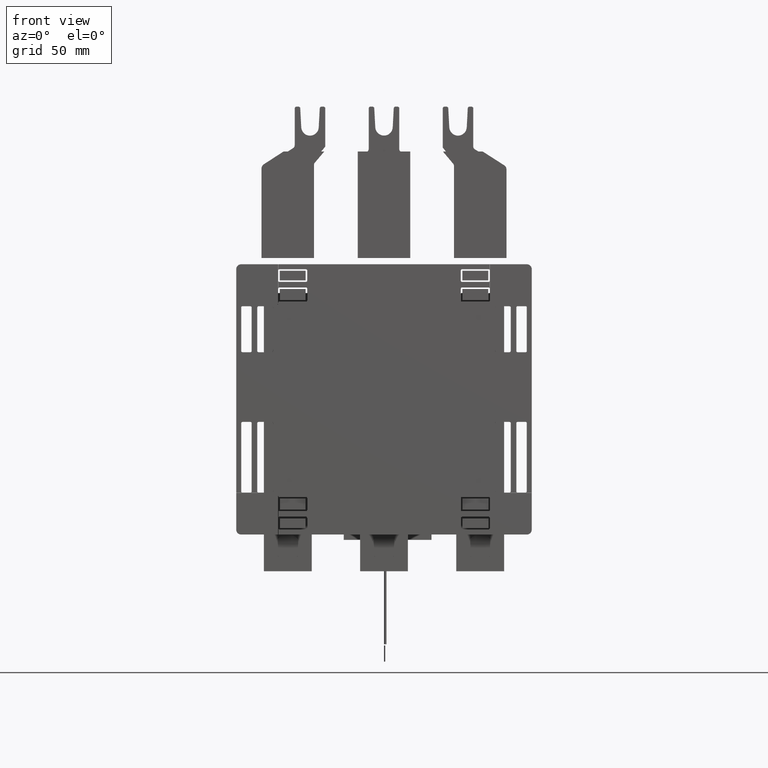
[diagram: clean part render]
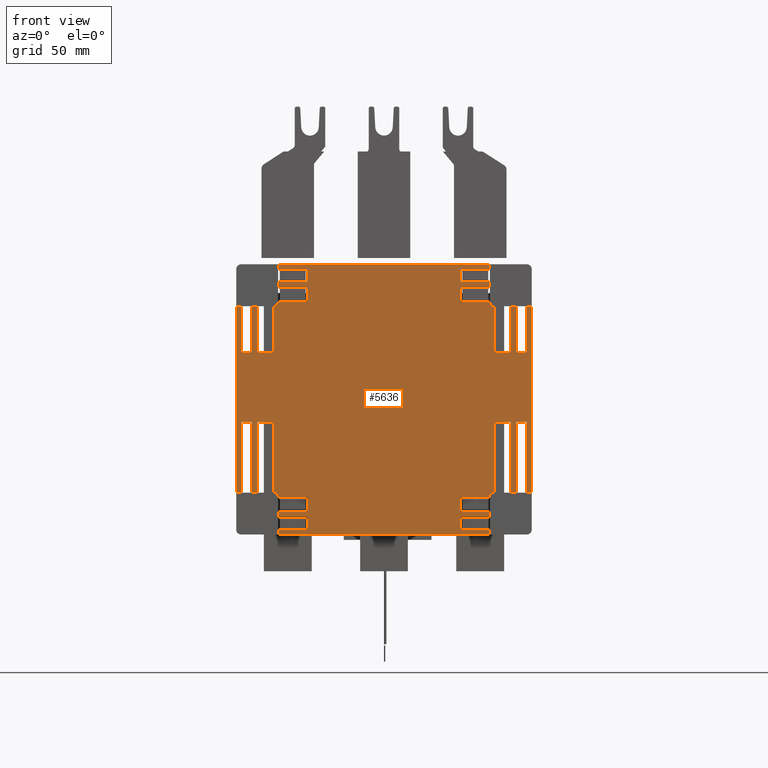
[diagram: same view with one face highlighted and labeled with its STEP entity id]
A machine part, front view. The second image highlights one B-rep face of the part: STEP entity #5636.
In plain terms, the highlighted planar face has unit normal (0, -1, 0).
Its self-contained STEP definition (entity closure, byte-faithful):
#1976=DIRECTION('',(0.E0,0.E0,1.E0));
#1977=VECTOR('',#1976,2.973330187128E0);
#1978=CARTESIAN_POINT('',(2.358267716535E0,-2.868897637795E0,
-1.486665093564E0));
#1979=LINE('',#1978,#1977);
#2046=DIRECTION('',(0.E0,0.E0,-1.E0));
#2047=VECTOR('',#2046,2.973330187128E0);
#2048=CARTESIAN_POINT('',(-2.358267716535E0,-2.868897637795E0,
1.486665093564E0));
#2049=LINE('',#2048,#2047);
#2700=DIRECTION('',(-1.E0,0.E0,0.E0));
#2701=VECTOR('',#2700,3.376822313113E0);
#2702=CARTESIAN_POINT('',(1.688411156556E0,-2.868897637795E0,2.156178049903E0));
#2703=LINE('',#2702,#2701);
#2758=DIRECTION('',(1.E0,0.E0,0.E0));
#2759=VECTOR('',#2758,3.376822313113E0);
#2760=CARTESIAN_POINT('',(-1.688411156556E0,-2.868897637795E0,
-2.156178049903E0));
#2761=LINE('',#2760,#2759);
#3004=DIRECTION('',(1.E0,0.E0,0.E0));
#3005=VECTOR('',#3004,4.028490003058E-2);
#3006=CARTESIAN_POINT('',(-1.787742180317E0,-2.868897637795E0,
1.486665093564E0));
#3007=LINE('',#3006,#3005);
#3008=CARTESIAN_POINT('',(-1.747457280286E0,-2.868897637795E0,
1.486665093564E0));
#3009=CARTESIAN_POINT('',(-1.727775239043E0,-2.868897637795E0,
1.486665093564E0));
#3010=CARTESIAN_POINT('',(-1.703315352188E0,-2.868897637795E0,
1.501569289196E0));
#3011=CARTESIAN_POINT('',(-1.688411156556E0,-2.868897637795E0,
1.526029176051E0));
#3012=CARTESIAN_POINT('',(-1.688411156556E0,-2.868897637795E0,
1.545711217294E0));
#3014=DIRECTION('',(0.E0,0.E0,1.E0));
#3015=VECTOR('',#3014,3.066399810164E-2);
#3016=CARTESIAN_POINT('',(-1.688411156556E0,-2.868897637795E0,
1.545711217294E0));
#3017=LINE('',#3016,#3015);
#3018=CARTESIAN_POINT('',(-1.688411156556E0,-2.868897637795E0,
1.576375215396E0));
#3019=CARTESIAN_POINT('',(-1.688411156556E0,-2.868897637795E0,
1.569814534981E0));
#3020=CARTESIAN_POINT('',(-1.683443091346E0,-2.868897637795E0,
1.561661239363E0));
#3021=CARTESIAN_POINT('',(-1.675289795728E0,-2.868897637795E0,
1.556693174152E0));
#3022=CARTESIAN_POINT('',(-1.668729115313E0,-2.868897637795E0,
1.556693174152E0));
#3024=DIRECTION('',(1.E0,0.E0,0.E0));
#3025=VECTOR('',#3024,4.233097696421E-1);
#3026=CARTESIAN_POINT('',(-1.668729115313E0,-2.868897637795E0,
1.556693174152E0));
#3027=LINE('',#3026,#3025);
#3028=CARTESIAN_POINT('',(-1.245419345671E0,-2.868897637795E0,
1.556693174152E0));
#3029=CARTESIAN_POINT('',(-1.238858665257E0,-2.868897637795E0,
1.556693174152E0));
#3030=CARTESIAN_POINT('',(-1.230705369638E0,-2.868897637795E0,
1.561661239363E0));
#3031=CARTESIAN_POINT('',(-1.225737304428E0,-2.868897637795E0,
1.569814534981E0));
#3032=CARTESIAN_POINT('',(-1.225737304428E0,-2.868897637795E0,
1.576375215396E0));
#3034=DIRECTION('',(0.E0,0.E0,1.E0));
#3035=VECTOR('',#3034,1.900164625555E-1);
#3036=CARTESIAN_POINT('',(-1.225737304428E0,-2.868897637795E0,
1.576375215396E0));
#3037=LINE('',#3036,#3035);
#3038=CARTESIAN_POINT('',(-1.225737304428E0,-2.868897637795E0,
1.766391677951E0));
#3039=CARTESIAN_POINT('',(-1.225737304428E0,-2.868897637795E0,
1.772952358366E0));
#3040=CARTESIAN_POINT('',(-1.230705369638E0,-2.868897637795E0,
1.781105653984E0));
#3041=CARTESIAN_POINT('',(-1.238858665257E0,-2.868897637795E0,
1.786073719194E0));
#3042=CARTESIAN_POINT('',(-1.245419345671E0,-2.868897637795E0,
1.786073719194E0));
#3044=DIRECTION('',(-1.E0,0.E0,0.E0));
#3045=VECTOR('',#3044,4.233097696421E-1);
#3046=CARTESIAN_POINT('',(-1.245419345671E0,-2.868897637795E0,
1.786073719194E0));
#3047=LINE('',#3046,#3045);
#3048=CARTESIAN_POINT('',(-1.668729115313E0,-2.868897637795E0,
1.786073719194E0));
#3049=CARTESIAN_POINT('',(-1.675289795728E0,-2.868897637795E0,
1.786073719194E0));
#3050=CARTESIAN_POINT('',(-1.683443091346E0,-2.868897637795E0,
1.781105653984E0));
#3051=CARTESIAN_POINT('',(-1.688411156556E0,-2.868897637795E0,
1.772952358366E0));
#3052=CARTESIAN_POINT('',(-1.688411156556E0,-2.868897637795E0,
1.766391677951E0));
#3054=DIRECTION('',(0.E0,0.E0,1.E0));
#3055=VECTOR('',#3054,1.286339669325E-1);
#3056=CARTESIAN_POINT('',(-1.688411156556E0,-2.868897637795E0,
1.766391677951E0));
#3057=LINE('',#3056,#3055);
#3058=CARTESIAN_POINT('',(-1.688411156556E0,-2.868897637795E0,
1.895025644884E0));
#3059=CARTESIAN_POINT('',(-1.688411156556E0,-2.868897637795E0,
1.888464964469E0));
#3060=CARTESIAN_POINT('',(-1.683443091346E0,-2.868897637795E0,
1.880311668851E0));
#3061=CARTESIAN_POINT('',(-1.675289795728E0,-2.868897637795E0,
1.875343603640E0));
#3062=CARTESIAN_POINT('',(-1.668729115313E0,-2.868897637795E0,
1.875343603640E0));
#3064=DIRECTION('',(1.E0,0.E0,0.E0));
#3065=VECTOR('',#3064,4.233097696421E-1);
#3066=CARTESIAN_POINT('',(-1.668729115313E0,-2.868897637795E0,
1.875343603640E0));
#3067=LINE('',#3066,#3065);
#3068=CARTESIAN_POINT('',(-1.245419345671E0,-2.868897637795E0,
1.875343603640E0));
#3069=CARTESIAN_POINT('',(-1.238858665257E0,-2.868897637795E0,
1.875343603640E0));
#3070=CARTESIAN_POINT('',(-1.230705369638E0,-2.868897637795E0,
1.880311668851E0));
#3071=CARTESIAN_POINT('',(-1.225737304428E0,-2.868897637795E0,
1.888464964469E0));
#3072=CARTESIAN_POINT('',(-1.225737304428E0,-2.868897637795E0,
1.895025644884E0));
#3074=DIRECTION('',(0.E0,0.E0,1.E0));
#3075=VECTOR('',#3074,1.625085885398E-1);
#3076=CARTESIAN_POINT('',(-1.225737304428E0,-2.868897637795E0,
1.895025644884E0));
#3077=LINE('',#3076,#3075);
#3078=CARTESIAN_POINT('',(-1.225737304428E0,-2.868897637795E0,
2.057534233423E0));
#3079=CARTESIAN_POINT('',(-1.225737304428E0,-2.868897637795E0,
2.064094913838E0));
#3080=CARTESIAN_POINT('',(-1.230705369638E0,-2.868897637795E0,
2.072248209456E0));
#3081=CARTESIAN_POINT('',(-1.238858665257E0,-2.868897637795E0,
2.077216274667E0));
#3082=CARTESIAN_POINT('',(-1.245419345671E0,-2.868897637795E0,
2.077216274667E0));
#3084=DIRECTION('',(-1.E0,0.E0,0.E0));
#3085=VECTOR('',#3084,4.233097696421E-1);
#3086=CARTESIAN_POINT('',(-1.245419345671E0,-2.868897637795E0,
2.077216274667E0));
#3087=LINE('',#3086,#3085);
#3088=CARTESIAN_POINT('',(-1.668729115313E0,-2.868897637795E0,
2.077216274667E0));
#3089=CARTESIAN_POINT('',(-1.675289795728E0,-2.868897637795E0,
2.077216274667E0));
#3090=CARTESIAN_POINT('',(-1.683443091346E0,-2.868897637795E0,
2.072248209456E0));
#3091=CARTESIAN_POINT('',(-1.688411156556E0,-2.868897637795E0,
2.064094913838E0));
#3092=CARTESIAN_POINT('',(-1.688411156556E0,-2.868897637795E0,
2.057534233423E0));
#3094=DIRECTION('',(0.E0,0.E0,1.E0));
#3095=VECTOR('',#3094,9.864381647965E-2);
#3096=CARTESIAN_POINT('',(-1.688411156556E0,-2.868897637795E0,
2.057534233423E0));
#3097=LINE('',#3096,#3095);
#3098=DIRECTION('',(0.E0,0.E0,-1.E0));
#3099=VECTOR('',#3098,9.864381647965E-2);
#3100=CARTESIAN_POINT('',(1.688411156556E0,-2.868897637795E0,2.156178049903E0));
#3101=LINE('',#3100,#3099);
#3102=CARTESIAN_POINT('',(1.688411156556E0,-2.868897637795E0,2.057534233423E0));
#3103=CARTESIAN_POINT('',(1.688411156556E0,-2.868897637795E0,2.064094913838E0));
#3104=CARTESIAN_POINT('',(1.683443091346E0,-2.868897637795E0,2.072248209456E0));
#3105=CARTESIAN_POINT('',(1.675289795728E0,-2.868897637795E0,2.077216274667E0));
#3106=CARTESIAN_POINT('',(1.668729115313E0,-2.868897637795E0,2.077216274667E0));
#3108=DIRECTION('',(-1.E0,0.E0,0.E0));
#3109=VECTOR('',#3108,4.233097696421E-1);
#3110=CARTESIAN_POINT('',(1.668729115313E0,-2.868897637795E0,2.077216274667E0));
#3111=LINE('',#3110,#3109);
#3112=CARTESIAN_POINT('',(1.245419345671E0,-2.868897637795E0,2.077216274667E0));
#3113=CARTESIAN_POINT('',(1.238858665257E0,-2.868897637795E0,2.077216274667E0));
#3114=CARTESIAN_POINT('',(1.230705369638E0,-2.868897637795E0,2.072248209456E0));
#3115=CARTESIAN_POINT('',(1.225737304428E0,-2.868897637795E0,2.064094913838E0));
#3116=CARTESIAN_POINT('',(1.225737304428E0,-2.868897637795E0,2.057534233423E0));
#3118=DIRECTION('',(0.E0,0.E0,-1.E0));
#3119=VECTOR('',#3118,1.625085885398E-1);
#3120=CARTESIAN_POINT('',(1.225737304428E0,-2.868897637795E0,2.057534233423E0));
#3121=LINE('',#3120,#3119);
#3122=CARTESIAN_POINT('',(1.225737304428E0,-2.868897637795E0,1.895025644884E0));
#3123=CARTESIAN_POINT('',(1.225737304428E0,-2.868897637795E0,1.888464964469E0));
#3124=CARTESIAN_POINT('',(1.230705369638E0,-2.868897637795E0,1.880311668851E0));
#3125=CARTESIAN_POINT('',(1.238858665257E0,-2.868897637795E0,1.875343603640E0));
#3126=CARTESIAN_POINT('',(1.245419345671E0,-2.868897637795E0,1.875343603640E0));
#3128=DIRECTION('',(1.E0,0.E0,0.E0));
#3129=VECTOR('',#3128,4.233097696421E-1);
#3130=CARTESIAN_POINT('',(1.245419345671E0,-2.868897637795E0,1.875343603640E0));
#3131=LINE('',#3130,#3129);
#3132=CARTESIAN_POINT('',(1.668729115313E0,-2.868897637795E0,1.875343603640E0));
#3133=CARTESIAN_POINT('',(1.675289795728E0,-2.868897637795E0,1.875343603640E0));
#3134=CARTESIAN_POINT('',(1.683443091346E0,-2.868897637795E0,1.880311668851E0));
#3135=CARTESIAN_POINT('',(1.688411156556E0,-2.868897637795E0,1.888464964469E0));
#3136=CARTESIAN_POINT('',(1.688411156556E0,-2.868897637795E0,1.895025644884E0));
#3138=DIRECTION('',(0.E0,0.E0,-1.E0));
#3139=VECTOR('',#3138,1.286339669325E-1);
#3140=CARTESIAN_POINT('',(1.688411156556E0,-2.868897637795E0,1.895025644884E0));
#3141=LINE('',#3140,#3139);
#3142=CARTESIAN_POINT('',(1.688411156556E0,-2.868897637795E0,1.766391677951E0));
#3143=CARTESIAN_POINT('',(1.688411156556E0,-2.868897637795E0,1.772952358366E0));
#3144=CARTESIAN_POINT('',(1.683443091346E0,-2.868897637795E0,1.781105653984E0));
#3145=CARTESIAN_POINT('',(1.675289795728E0,-2.868897637795E0,1.786073719194E0));
#3146=CARTESIAN_POINT('',(1.668729115313E0,-2.868897637795E0,1.786073719194E0));
#3148=DIRECTION('',(-1.E0,0.E0,0.E0));
#3149=VECTOR('',#3148,4.233097696421E-1);
#3150=CARTESIAN_POINT('',(1.668729115313E0,-2.868897637795E0,1.786073719194E0));
#3151=LINE('',#3150,#3149);
#3152=CARTESIAN_POINT('',(1.245419345671E0,-2.868897637795E0,1.786073719194E0));
#3153=CARTESIAN_POINT('',(1.238858665257E0,-2.868897637795E0,1.786073719194E0));
#3154=CARTESIAN_POINT('',(1.230705369638E0,-2.868897637795E0,1.781105653984E0));
#3155=CARTESIAN_POINT('',(1.225737304428E0,-2.868897637795E0,1.772952358366E0));
#3156=CARTESIAN_POINT('',(1.225737304428E0,-2.868897637795E0,1.766391677951E0));
#3158=DIRECTION('',(0.E0,0.E0,-1.E0));
#3159=VECTOR('',#3158,1.900164625555E-1);
#3160=CARTESIAN_POINT('',(1.225737304428E0,-2.868897637795E0,1.766391677951E0));
#3161=LINE('',#3160,#3159);
#3162=CARTESIAN_POINT('',(1.225737304428E0,-2.868897637795E0,1.576375215396E0));
#3163=CARTESIAN_POINT('',(1.225737304428E0,-2.868897637795E0,1.569814534981E0));
#3164=CARTESIAN_POINT('',(1.230705369638E0,-2.868897637795E0,1.561661239363E0));
#3165=CARTESIAN_POINT('',(1.238858665257E0,-2.868897637795E0,1.556693174152E0));
#3166=CARTESIAN_POINT('',(1.245419345671E0,-2.868897637795E0,1.556693174152E0));
#3168=DIRECTION('',(1.E0,0.E0,0.E0));
#3169=VECTOR('',#3168,4.233097696421E-1);
#3170=CARTESIAN_POINT('',(1.245419345671E0,-2.868897637795E0,1.556693174152E0));
#3171=LINE('',#3170,#3169);
#3172=CARTESIAN_POINT('',(1.668729115313E0,-2.868897637795E0,1.556693174152E0));
#3173=CARTESIAN_POINT('',(1.675289795728E0,-2.868897637795E0,1.556693174152E0));
#3174=CARTESIAN_POINT('',(1.683443091346E0,-2.868897637795E0,1.561661239363E0));
#3175=CARTESIAN_POINT('',(1.688411156556E0,-2.868897637795E0,1.569814534981E0));
#3176=CARTESIAN_POINT('',(1.688411156556E0,-2.868897637795E0,1.576375215396E0));
#3178=DIRECTION('',(0.E0,0.E0,-1.E0));
#3179=VECTOR('',#3178,3.066399810164E-2);
#3180=CARTESIAN_POINT('',(1.688411156556E0,-2.868897637795E0,1.576375215396E0));
#3181=LINE('',#3180,#3179);
#3182=CARTESIAN_POINT('',(1.688411156556E0,-2.868897637795E0,1.545711217294E0));
#3183=CARTESIAN_POINT('',(1.688411156556E0,-2.868897637795E0,1.526029176051E0));
#3184=CARTESIAN_POINT('',(1.703315352188E0,-2.868897637795E0,1.501569289196E0));
#3185=CARTESIAN_POINT('',(1.727775239043E0,-2.868897637795E0,1.486665093564E0));
#3186=CARTESIAN_POINT('',(1.747457280286E0,-2.868897637795E0,1.486665093564E0));
#3188=DIRECTION('',(1.E0,0.E0,0.E0));
#3189=VECTOR('',#3188,4.028490003058E-2);
#3190=CARTESIAN_POINT('',(1.747457280286E0,-2.868897637795E0,1.486665093564E0));
#3191=LINE('',#3190,#3189);
#3192=CARTESIAN_POINT('',(1.787742180317E0,-2.868897637795E0,1.486665093564E0));
#3193=CARTESIAN_POINT('',(1.781181499902E0,-2.868897637795E0,1.486665093564E0));
#3194=CARTESIAN_POINT('',(1.773028204284E0,-2.868897637795E0,1.481697028354E0));
#3195=CARTESIAN_POINT('',(1.768060139073E0,-2.868897637795E0,1.473543732735E0));
#3196=CARTESIAN_POINT('',(1.768060139073E0,-2.868897637795E0,1.466983052321E0));
#3198=DIRECTION('',(0.E0,0.E0,-1.E0));
#3199=VECTOR('',#3198,6.940046515319E-1);
#3200=CARTESIAN_POINT('',(1.768060139073E0,-2.868897637795E0,1.466983052321E0));
#3201=LINE('',#3200,#3199);
#3202=CARTESIAN_POINT('',(1.768060139073E0,-2.868897637795E0,
7.729784007891E-1));
#3203=CARTESIAN_POINT('',(1.768060139073E0,-2.868897637795E0,
7.664177203747E-1));
#3204=CARTESIAN_POINT('',(1.773028204284E0,-2.868897637795E0,
7.582644247564E-1));
#3205=CARTESIAN_POINT('',(1.781181499902E0,-2.868897637795E0,
7.532963595458E-1));
#3206=CARTESIAN_POINT('',(1.787742180317E0,-2.868897637795E0,
7.532963595458E-1));
#3208=DIRECTION('',(1.E0,0.E0,0.E0));
#3209=VECTOR('',#3208,2.148699700754E-1);
#3210=CARTESIAN_POINT('',(1.787742180317E0,-2.868897637795E0,
7.532963595458E-1));
#3211=LINE('',#3210,#3209);
#3212=CARTESIAN_POINT('',(2.002612150392E0,-2.868897637795E0,
7.532963595458E-1));
#3213=CARTESIAN_POINT('',(2.009172830806E0,-2.868897637795E0,
7.532963595458E-1));
#3214=CARTESIAN_POINT('',(2.017326126425E0,-2.868897637795E0,
7.582644247564E-1));
#3215=CARTESIAN_POINT('',(2.022294191635E0,-2.868897637795E0,
7.664177203747E-1));
#3216=CARTESIAN_POINT('',(2.022294191635E0,-2.868897637795E0,
7.729784007891E-1));
#3218=DIRECTION('',(0.E0,0.E0,1.E0));
#3219=VECTOR('',#3218,6.940046515319E-1);
#3220=CARTESIAN_POINT('',(2.022294191635E0,-2.868897637795E0,
7.729784007891E-1));
#3221=LINE('',#3220,#3219);
#3222=CARTESIAN_POINT('',(2.022294191635E0,-2.868897637795E0,1.466983052321E0));
#3223=CARTESIAN_POINT('',(2.022294191635E0,-2.868897637795E0,1.473543732735E0));
#3224=CARTESIAN_POINT('',(2.017326126425E0,-2.868897637795E0,1.481697028354E0));
#3225=CARTESIAN_POINT('',(2.009172830806E0,-2.868897637795E0,1.486665093564E0));
#3226=CARTESIAN_POINT('',(2.002612150392E0,-2.868897637795E0,1.486665093564E0));
#3228=DIRECTION('',(1.E0,0.E0,0.E0));
#3229=VECTOR('',#3228,1.286339669325E-1);
#3230=CARTESIAN_POINT('',(2.002612150392E0,-2.868897637795E0,1.486665093564E0));
#3231=LINE('',#3230,#3229);
#3232=CARTESIAN_POINT('',(2.131246117325E0,-2.868897637795E0,1.486665093564E0));
#3233=CARTESIAN_POINT('',(2.124685436910E0,-2.868897637795E0,1.486665093564E0));
#3234=CARTESIAN_POINT('',(2.116532141292E0,-2.868897637795E0,1.481697028354E0));
#3235=CARTESIAN_POINT('',(2.111564076081E0,-2.868897637795E0,1.473543732735E0));
#3236=CARTESIAN_POINT('',(2.111564076081E0,-2.868897637795E0,1.466983052321E0));
#3238=DIRECTION('',(0.E0,0.E0,-1.E0));
#3239=VECTOR('',#3238,6.940046515319E-1);
#3240=CARTESIAN_POINT('',(2.111564076081E0,-2.868897637795E0,1.466983052321E0));
#3241=LINE('',#3240,#3239);
#3242=CARTESIAN_POINT('',(2.111564076081E0,-2.868897637795E0,
7.729784007891E-1));
#3243=CARTESIAN_POINT('',(2.111564076081E0,-2.868897637795E0,
7.664177203747E-1));
#3244=CARTESIAN_POINT('',(2.116532141292E0,-2.868897637795E0,
7.582644247564E-1));
#3245=CARTESIAN_POINT('',(2.124685436910E0,-2.868897637795E0,
7.532963595458E-1));
#3246=CARTESIAN_POINT('',(2.131246117325E0,-2.868897637795E0,
7.532963595458E-1));
#3248=DIRECTION('',(1.E0,0.E0,0.E0));
#3249=VECTOR('',#3248,1.280341790910E-1);
#3250=CARTESIAN_POINT('',(2.131246117325E0,-2.868897637795E0,
7.532963595458E-1));
#3251=LINE('',#3250,#3249);
#3252=CARTESIAN_POINT('',(2.259280296415E0,-2.868897637795E0,
7.532963595458E-1));
#3253=CARTESIAN_POINT('',(2.265840976830E0,-2.868897637795E0,
7.532963595458E-1));
#3254=CARTESIAN_POINT('',(2.273994272448E0,-2.868897637795E0,
7.582644247564E-1));
#3255=CARTESIAN_POINT('',(2.278962337659E0,-2.868897637795E0,
7.664177203747E-1));
#3256=CARTESIAN_POINT('',(2.278962337659E0,-2.868897637795E0,
7.729784007891E-1));
#3258=DIRECTION('',(0.E0,0.E0,1.E0));
#3259=VECTOR('',#3258,6.940046515319E-1);
#3260=CARTESIAN_POINT('',(2.278962337659E0,-2.868897637795E0,
7.729784007891E-1));
#3261=LINE('',#3260,#3259);
#3262=CARTESIAN_POINT('',(2.278962337659E0,-2.868897637795E0,1.466983052321E0));
#3263=CARTESIAN_POINT('',(2.278962337659E0,-2.868897637795E0,1.473543732735E0));
#3264=CARTESIAN_POINT('',(2.273994272448E0,-2.868897637795E0,1.481697028354E0));
#3265=CARTESIAN_POINT('',(2.265840976830E0,-2.868897637795E0,1.486665093564E0));
#3266=CARTESIAN_POINT('',(2.259280296415E0,-2.868897637795E0,1.486665093564E0));
#3268=DIRECTION('',(1.E0,0.E0,0.E0));
#3269=VECTOR('',#3268,9.898742011997E-2);
#3270=CARTESIAN_POINT('',(2.259280296415E0,-2.868897637795E0,1.486665093564E0));
#3271=LINE('',#3270,#3269);
#3272=DIRECTION('',(-1.E0,0.E0,0.E0));
#3273=VECTOR('',#3272,9.898742011997E-2);
#3274=CARTESIAN_POINT('',(2.358267716535E0,-2.868897637795E0,
-1.486665093564E0));
#3275=LINE('',#3274,#3273);
#3276=CARTESIAN_POINT('',(2.259280296415E0,-2.868897637795E0,
-1.486665093564E0));
#3277=CARTESIAN_POINT('',(2.265840976830E0,-2.868897637795E0,
-1.486665093564E0));
#3278=CARTESIAN_POINT('',(2.273994272448E0,-2.868897637795E0,
-1.481697028354E0));
#3279=CARTESIAN_POINT('',(2.278962337659E0,-2.868897637795E0,
-1.473543732735E0));
#3280=CARTESIAN_POINT('',(2.278962337659E0,-2.868897637795E0,
-1.466983052321E0));
#3282=DIRECTION('',(0.E0,0.E0,1.E0));
#3283=VECTOR('',#3282,1.087705438933E0);
#3284=CARTESIAN_POINT('',(2.278962337659E0,-2.868897637795E0,
-1.466983052321E0));
#3285=LINE('',#3284,#3283);
#3286=CARTESIAN_POINT('',(2.278962337659E0,-2.868897637795E0,
-3.792776133875E-1));
#3287=CARTESIAN_POINT('',(2.278962337659E0,-2.868897637795E0,
-3.727169329731E-1));
#3288=CARTESIAN_POINT('',(2.273994272448E0,-2.868897637795E0,
-3.645636373548E-1));
#3289=CARTESIAN_POINT('',(2.265840976830E0,-2.868897637795E0,
-3.595955721443E-1));
#3290=CARTESIAN_POINT('',(2.259280296415E0,-2.868897637795E0,
-3.595955721443E-1));
#3292=DIRECTION('',(-1.E0,0.E0,0.E0));
#3293=VECTOR('',#3292,1.280341790910E-1);
#3294=CARTESIAN_POINT('',(2.259280296415E0,-2.868897637795E0,
-3.595955721443E-1));
#3295=LINE('',#3294,#3293);
#3296=CARTESIAN_POINT('',(2.131246117325E0,-2.868897637795E0,
-3.595955721443E-1));
#3297=CARTESIAN_POINT('',(2.124685436910E0,-2.868897637795E0,
-3.595955721443E-1));
#3298=CARTESIAN_POINT('',(2.116532141292E0,-2.868897637795E0,
-3.645636373548E-1));
#3299=CARTESIAN_POINT('',(2.111564076081E0,-2.868897637795E0,
-3.727169329731E-1));
#3300=CARTESIAN_POINT('',(2.111564076081E0,-2.868897637795E0,
-3.792776133875E-1));
#3302=DIRECTION('',(0.E0,0.E0,-1.E0));
#3303=VECTOR('',#3302,1.087705438933E0);
#3304=CARTESIAN_POINT('',(2.111564076081E0,-2.868897637795E0,
-3.792776133875E-1));
#3305=LINE('',#3304,#3303);
#3306=CARTESIAN_POINT('',(2.111564076081E0,-2.868897637795E0,
-1.466983052321E0));
#3307=CARTESIAN_POINT('',(2.111564076081E0,-2.868897637795E0,
-1.473543732735E0));
#3308=CARTESIAN_POINT('',(2.116532141292E0,-2.868897637795E0,
-1.481697028354E0));
#3309=CARTESIAN_POINT('',(2.124685436910E0,-2.868897637795E0,
-1.486665093564E0));
#3310=CARTESIAN_POINT('',(2.131246117325E0,-2.868897637795E0,
-1.486665093564E0));
#3312=DIRECTION('',(-1.E0,0.E0,0.E0));
#3313=VECTOR('',#3312,1.286339669325E-1);
#3314=CARTESIAN_POINT('',(2.131246117325E0,-2.868897637795E0,
-1.486665093564E0));
#3315=LINE('',#3314,#3313);
#3316=CARTESIAN_POINT('',(2.002612150392E0,-2.868897637795E0,
-1.486665093564E0));
#3317=CARTESIAN_POINT('',(2.009172830806E0,-2.868897637795E0,
-1.486665093564E0));
#3318=CARTESIAN_POINT('',(2.017326126425E0,-2.868897637795E0,
-1.481697028354E0));
#3319=CARTESIAN_POINT('',(2.022294191635E0,-2.868897637795E0,
-1.473543732735E0));
#3320=CARTESIAN_POINT('',(2.022294191635E0,-2.868897637795E0,
-1.466983052321E0));
#3322=DIRECTION('',(0.E0,0.E0,1.E0));
#3323=VECTOR('',#3322,1.087705438933E0);
#3324=CARTESIAN_POINT('',(2.022294191635E0,-2.868897637795E0,
-1.466983052321E0));
#3325=LINE('',#3324,#3323);
#3326=CARTESIAN_POINT('',(2.022294191635E0,-2.868897637795E0,
-3.792776133875E-1));
#3327=CARTESIAN_POINT('',(2.022294191635E0,-2.868897637795E0,
-3.727169329731E-1));
#3328=CARTESIAN_POINT('',(2.017326126425E0,-2.868897637795E0,
-3.645636373548E-1));
#3329=CARTESIAN_POINT('',(2.009172830806E0,-2.868897637795E0,
-3.595955721443E-1));
#3330=CARTESIAN_POINT('',(2.002612150392E0,-2.868897637795E0,
-3.595955721443E-1));
#3332=DIRECTION('',(-1.E0,0.E0,0.E0));
#3333=VECTOR('',#3332,2.148699700754E-1);
#3334=CARTESIAN_POINT('',(2.002612150392E0,-2.868897637795E0,
-3.595955721443E-1));
#3335=LINE('',#3334,#3333);
#3336=CARTESIAN_POINT('',(1.787742180317E0,-2.868897637795E0,
-3.595955721443E-1));
#3337=CARTESIAN_POINT('',(1.781181499902E0,-2.868897637795E0,
-3.595955721443E-1));
#3338=CARTESIAN_POINT('',(1.773028204284E0,-2.868897637795E0,
-3.645636373548E-1));
#3339=CARTESIAN_POINT('',(1.768060139073E0,-2.868897637795E0,
-3.727169329731E-1));
#3340=CARTESIAN_POINT('',(1.768060139073E0,-2.868897637795E0,
-3.792776133875E-1));
#3342=DIRECTION('',(0.E0,0.E0,-1.E0));
#3343=VECTOR('',#3342,1.087705438933E0);
#3344=CARTESIAN_POINT('',(1.768060139073E0,-2.868897637795E0,
-3.792776133875E-1));
#3345=LINE('',#3344,#3343);
#3346=CARTESIAN_POINT('',(1.768060139073E0,-2.868897637795E0,
-1.466983052321E0));
#3347=CARTESIAN_POINT('',(1.768060139073E0,-2.868897637795E0,
-1.473543732735E0));
#3348=CARTESIAN_POINT('',(1.773028204284E0,-2.868897637795E0,
-1.481697028354E0));
#3349=CARTESIAN_POINT('',(1.781181499902E0,-2.868897637795E0,
-1.486665093564E0));
#3350=CARTESIAN_POINT('',(1.787742180317E0,-2.868897637795E0,
-1.486665093564E0));
#3352=DIRECTION('',(-1.E0,0.E0,0.E0));
#3353=VECTOR('',#3352,4.028490003058E-2);
#3354=CARTESIAN_POINT('',(1.787742180317E0,-2.868897637795E0,
-1.486665093564E0));
#3355=LINE('',#3354,#3353);
#3356=CARTESIAN_POINT('',(1.747457280286E0,-2.868897637795E0,
-1.486665093564E0));
#3357=CARTESIAN_POINT('',(1.727775239043E0,-2.868897637795E0,
-1.486665093564E0));
#3358=CARTESIAN_POINT('',(1.703315352188E0,-2.868897637795E0,
-1.501569289196E0));
#3359=CARTESIAN_POINT('',(1.688411156556E0,-2.868897637795E0,
-1.526029176051E0));
#3360=CARTESIAN_POINT('',(1.688411156556E0,-2.868897637795E0,
-1.545711217294E0));
#3362=DIRECTION('',(0.E0,0.E0,-1.E0));
#3363=VECTOR('',#3362,3.066399810164E-2);
#3364=CARTESIAN_POINT('',(1.688411156556E0,-2.868897637795E0,
-1.545711217294E0));
#3365=LINE('',#3364,#3363);
#3366=CARTESIAN_POINT('',(1.688411156556E0,-2.868897637795E0,
-1.576375215396E0));
#3367=CARTESIAN_POINT('',(1.688411156556E0,-2.868897637795E0,
-1.569814534981E0));
#3368=CARTESIAN_POINT('',(1.683443091346E0,-2.868897637795E0,
-1.561661239363E0));
#3369=CARTESIAN_POINT('',(1.675289795728E0,-2.868897637795E0,
-1.556693174152E0));
#3370=CARTESIAN_POINT('',(1.668729115313E0,-2.868897637795E0,
-1.556693174152E0));
#3372=DIRECTION('',(-1.E0,0.E0,0.E0));
#3373=VECTOR('',#3372,4.233097696421E-1);
#3374=CARTESIAN_POINT('',(1.668729115313E0,-2.868897637795E0,
-1.556693174152E0));
#3375=LINE('',#3374,#3373);
#3376=CARTESIAN_POINT('',(1.245419345671E0,-2.868897637795E0,
-1.556693174152E0));
#3377=CARTESIAN_POINT('',(1.238858665257E0,-2.868897637795E0,
-1.556693174152E0));
#3378=CARTESIAN_POINT('',(1.230705369638E0,-2.868897637795E0,
-1.561661239363E0));
#3379=CARTESIAN_POINT('',(1.225737304428E0,-2.868897637795E0,
-1.569814534981E0));
#3380=CARTESIAN_POINT('',(1.225737304428E0,-2.868897637795E0,
-1.576375215396E0));
#3382=DIRECTION('',(0.E0,0.E0,-1.E0));
#3383=VECTOR('',#3382,1.900164625555E-1);
#3384=CARTESIAN_POINT('',(1.225737304428E0,-2.868897637795E0,
-1.576375215396E0));
#3385=LINE('',#3384,#3383);
#3386=CARTESIAN_POINT('',(1.225737304428E0,-2.868897637795E0,
-1.766391677951E0));
#3387=CARTESIAN_POINT('',(1.225737304428E0,-2.868897637795E0,
-1.772952358366E0));
#3388=CARTESIAN_POINT('',(1.230705369638E0,-2.868897637795E0,
-1.781105653984E0));
#3389=CARTESIAN_POINT('',(1.238858665257E0,-2.868897637795E0,
-1.786073719194E0));
#3390=CARTESIAN_POINT('',(1.245419345671E0,-2.868897637795E0,
-1.786073719194E0));
#3392=DIRECTION('',(1.E0,0.E0,0.E0));
#3393=VECTOR('',#3392,4.233097696421E-1);
#3394=CARTESIAN_POINT('',(1.245419345671E0,-2.868897637795E0,
-1.786073719194E0));
#3395=LINE('',#3394,#3393);
#3396=CARTESIAN_POINT('',(1.668729115313E0,-2.868897637795E0,
-1.786073719194E0));
#3397=CARTESIAN_POINT('',(1.675289795728E0,-2.868897637795E0,
-1.786073719194E0));
#3398=CARTESIAN_POINT('',(1.683443091346E0,-2.868897637795E0,
-1.781105653984E0));
#3399=CARTESIAN_POINT('',(1.688411156556E0,-2.868897637795E0,
-1.772952358366E0));
#3400=CARTESIAN_POINT('',(1.688411156556E0,-2.868897637795E0,
-1.766391677951E0));
#3402=DIRECTION('',(0.E0,0.E0,-1.E0));
#3403=VECTOR('',#3402,1.286339669325E-1);
#3404=CARTESIAN_POINT('',(1.688411156556E0,-2.868897637795E0,
-1.766391677951E0));
#3405=LINE('',#3404,#3403);
#3406=CARTESIAN_POINT('',(1.688411156556E0,-2.868897637795E0,
-1.895025644884E0));
#3407=CARTESIAN_POINT('',(1.688411156556E0,-2.868897637795E0,
-1.888464964469E0));
#3408=CARTESIAN_POINT('',(1.683443091346E0,-2.868897637795E0,
-1.880311668851E0));
#3409=CARTESIAN_POINT('',(1.675289795728E0,-2.868897637795E0,
-1.875343603640E0));
#3410=CARTESIAN_POINT('',(1.668729115313E0,-2.868897637795E0,
-1.875343603640E0));
#3412=DIRECTION('',(-1.E0,0.E0,0.E0));
#3413=VECTOR('',#3412,4.233097696421E-1);
#3414=CARTESIAN_POINT('',(1.668729115313E0,-2.868897637795E0,
-1.875343603640E0));
#3415=LINE('',#3414,#3413);
#3416=CARTESIAN_POINT('',(1.245419345671E0,-2.868897637795E0,
-1.875343603640E0));
#3417=CARTESIAN_POINT('',(1.238858665257E0,-2.868897637795E0,
-1.875343603640E0));
#3418=CARTESIAN_POINT('',(1.230705369638E0,-2.868897637795E0,
-1.880311668851E0));
#3419=CARTESIAN_POINT('',(1.225737304428E0,-2.868897637795E0,
-1.888464964469E0));
#3420=CARTESIAN_POINT('',(1.225737304428E0,-2.868897637795E0,
-1.895025644884E0));
#3422=DIRECTION('',(0.E0,0.E0,-1.E0));
#3423=VECTOR('',#3422,1.625085885398E-1);
#3424=CARTESIAN_POINT('',(1.225737304428E0,-2.868897637795E0,
-1.895025644884E0));
#3425=LINE('',#3424,#3423);
#3426=CARTESIAN_POINT('',(1.225737304428E0,-2.868897637795E0,
-2.057534233423E0));
#3427=CARTESIAN_POINT('',(1.225737304428E0,-2.868897637795E0,
-2.064094913838E0));
#3428=CARTESIAN_POINT('',(1.230705369638E0,-2.868897637795E0,
-2.072248209456E0));
#3429=CARTESIAN_POINT('',(1.238858665257E0,-2.868897637795E0,
-2.077216274667E0));
#3430=CARTESIAN_POINT('',(1.245419345671E0,-2.868897637795E0,
-2.077216274667E0));
#3432=DIRECTION('',(1.E0,0.E0,0.E0));
#3433=VECTOR('',#3432,4.233097696421E-1);
#3434=CARTESIAN_POINT('',(1.245419345671E0,-2.868897637795E0,
-2.077216274667E0));
#3435=LINE('',#3434,#3433);
#3436=CARTESIAN_POINT('',(1.668729115313E0,-2.868897637795E0,
-2.077216274667E0));
#3437=CARTESIAN_POINT('',(1.675289795728E0,-2.868897637795E0,
-2.077216274667E0));
#3438=CARTESIAN_POINT('',(1.683443091346E0,-2.868897637795E0,
-2.072248209456E0));
#3439=CARTESIAN_POINT('',(1.688411156556E0,-2.868897637795E0,
-2.064094913838E0));
#3440=CARTESIAN_POINT('',(1.688411156556E0,-2.868897637795E0,
-2.057534233423E0));
#3442=DIRECTION('',(0.E0,0.E0,-1.E0));
#3443=VECTOR('',#3442,9.864381647965E-2);
#3444=CARTESIAN_POINT('',(1.688411156556E0,-2.868897637795E0,
-2.057534233423E0));
#3445=LINE('',#3444,#3443);
#3446=DIRECTION('',(0.E0,0.E0,1.E0));
#3447=VECTOR('',#3446,9.864381647965E-2);
#3448=CARTESIAN_POINT('',(-1.688411156556E0,-2.868897637795E0,
-2.156178049903E0));
#3449=LINE('',#3448,#3447);
#3450=CARTESIAN_POINT('',(-1.688411156556E0,-2.868897637795E0,
-2.057534233423E0));
#3451=CARTESIAN_POINT('',(-1.688411156556E0,-2.868897637795E0,
-2.064094913838E0));
#3452=CARTESIAN_POINT('',(-1.683443091346E0,-2.868897637795E0,
-2.072248209456E0));
#3453=CARTESIAN_POINT('',(-1.675289795728E0,-2.868897637795E0,
-2.077216274667E0));
#3454=CARTESIAN_POINT('',(-1.668729115313E0,-2.868897637795E0,
-2.077216274667E0));
#3456=DIRECTION('',(1.E0,0.E0,0.E0));
#3457=VECTOR('',#3456,4.233097696421E-1);
#3458=CARTESIAN_POINT('',(-1.668729115313E0,-2.868897637795E0,
-2.077216274667E0));
#3459=LINE('',#3458,#3457);
#3460=CARTESIAN_POINT('',(-1.245419345671E0,-2.868897637795E0,
-2.077216274667E0));
#3461=CARTESIAN_POINT('',(-1.238858665257E0,-2.868897637795E0,
-2.077216274667E0));
#3462=CARTESIAN_POINT('',(-1.230705369638E0,-2.868897637795E0,
-2.072248209456E0));
#3463=CARTESIAN_POINT('',(-1.225737304428E0,-2.868897637795E0,
-2.064094913838E0));
#3464=CARTESIAN_POINT('',(-1.225737304428E0,-2.868897637795E0,
-2.057534233423E0));
#3466=DIRECTION('',(0.E0,0.E0,1.E0));
#3467=VECTOR('',#3466,1.625085885398E-1);
#3468=CARTESIAN_POINT('',(-1.225737304428E0,-2.868897637795E0,
-2.057534233423E0));
#3469=LINE('',#3468,#3467);
#3470=CARTESIAN_POINT('',(-1.225737304428E0,-2.868897637795E0,
-1.895025644884E0));
#3471=CARTESIAN_POINT('',(-1.225737304428E0,-2.868897637795E0,
-1.888464964469E0));
#3472=CARTESIAN_POINT('',(-1.230705369638E0,-2.868897637795E0,
-1.880311668851E0));
#3473=CARTESIAN_POINT('',(-1.238858665257E0,-2.868897637795E0,
-1.875343603640E0));
#3474=CARTESIAN_POINT('',(-1.245419345671E0,-2.868897637795E0,
-1.875343603640E0));
#3476=DIRECTION('',(-1.E0,0.E0,0.E0));
#3477=VECTOR('',#3476,4.233097696421E-1);
#3478=CARTESIAN_POINT('',(-1.245419345671E0,-2.868897637795E0,
-1.875343603640E0));
#3479=LINE('',#3478,#3477);
#3480=CARTESIAN_POINT('',(-1.668729115313E0,-2.868897637795E0,
-1.875343603640E0));
#3481=CARTESIAN_POINT('',(-1.675289795728E0,-2.868897637795E0,
-1.875343603640E0));
#3482=CARTESIAN_POINT('',(-1.683443091346E0,-2.868897637795E0,
-1.880311668851E0));
#3483=CARTESIAN_POINT('',(-1.688411156556E0,-2.868897637795E0,
-1.888464964469E0));
#3484=CARTESIAN_POINT('',(-1.688411156556E0,-2.868897637795E0,
-1.895025644884E0));
#3486=DIRECTION('',(0.E0,0.E0,1.E0));
#3487=VECTOR('',#3486,1.286339669325E-1);
#3488=CARTESIAN_POINT('',(-1.688411156556E0,-2.868897637795E0,
-1.895025644884E0));
#3489=LINE('',#3488,#3487);
#3490=CARTESIAN_POINT('',(-1.688411156556E0,-2.868897637795E0,
-1.766391677951E0));
#3491=CARTESIAN_POINT('',(-1.688411156556E0,-2.868897637795E0,
-1.772952358366E0));
#3492=CARTESIAN_POINT('',(-1.683443091346E0,-2.868897637795E0,
-1.781105653984E0));
#3493=CARTESIAN_POINT('',(-1.675289795728E0,-2.868897637795E0,
-1.786073719194E0));
#3494=CARTESIAN_POINT('',(-1.668729115313E0,-2.868897637795E0,
-1.786073719194E0));
#3496=DIRECTION('',(1.E0,0.E0,0.E0));
#3497=VECTOR('',#3496,4.233097696421E-1);
#3498=CARTESIAN_POINT('',(-1.668729115313E0,-2.868897637795E0,
-1.786073719194E0));
#3499=LINE('',#3498,#3497);
#3500=CARTESIAN_POINT('',(-1.245419345671E0,-2.868897637795E0,
-1.786073719194E0));
#3501=CARTESIAN_POINT('',(-1.238858665257E0,-2.868897637795E0,
-1.786073719194E0));
#3502=CARTESIAN_POINT('',(-1.230705369638E0,-2.868897637795E0,
-1.781105653984E0));
#3503=CARTESIAN_POINT('',(-1.225737304428E0,-2.868897637795E0,
-1.772952358366E0));
#3504=CARTESIAN_POINT('',(-1.225737304428E0,-2.868897637795E0,
-1.766391677951E0));
#3506=DIRECTION('',(0.E0,0.E0,1.E0));
#3507=VECTOR('',#3506,1.900164625555E-1);
#3508=CARTESIAN_POINT('',(-1.225737304428E0,-2.868897637795E0,
-1.766391677951E0));
#3509=LINE('',#3508,#3507);
#3510=CARTESIAN_POINT('',(-1.225737304428E0,-2.868897637795E0,
-1.576375215396E0));
#3511=CARTESIAN_POINT('',(-1.225737304428E0,-2.868897637795E0,
-1.569814534981E0));
#3512=CARTESIAN_POINT('',(-1.230705369638E0,-2.868897637795E0,
-1.561661239363E0));
#3513=CARTESIAN_POINT('',(-1.238858665257E0,-2.868897637795E0,
-1.556693174152E0));
#3514=CARTESIAN_POINT('',(-1.245419345671E0,-2.868897637795E0,
-1.556693174152E0));
#3516=DIRECTION('',(-1.E0,0.E0,0.E0));
#3517=VECTOR('',#3516,4.233097696421E-1);
#3518=CARTESIAN_POINT('',(-1.245419345671E0,-2.868897637795E0,
-1.556693174152E0));
#3519=LINE('',#3518,#3517);
#3520=CARTESIAN_POINT('',(-1.668729115313E0,-2.868897637795E0,
-1.556693174152E0));
#3521=CARTESIAN_POINT('',(-1.675289795728E0,-2.868897637795E0,
-1.556693174152E0));
#3522=CARTESIAN_POINT('',(-1.683443091346E0,-2.868897637795E0,
-1.561661239363E0));
#3523=CARTESIAN_POINT('',(-1.688411156556E0,-2.868897637795E0,
-1.569814534981E0));
#3524=CARTESIAN_POINT('',(-1.688411156556E0,-2.868897637795E0,
-1.576375215396E0));
#3526=DIRECTION('',(0.E0,0.E0,1.E0));
#3527=VECTOR('',#3526,3.066399810164E-2);
#3528=CARTESIAN_POINT('',(-1.688411156556E0,-2.868897637795E0,
-1.576375215396E0));
#3529=LINE('',#3528,#3527);
#3530=CARTESIAN_POINT('',(-1.688411156556E0,-2.868897637795E0,
-1.545711217294E0));
#3531=CARTESIAN_POINT('',(-1.688411156556E0,-2.868897637795E0,
-1.526029176051E0));
#3532=CARTESIAN_POINT('',(-1.703315352188E0,-2.868897637795E0,
-1.501569289196E0));
#3533=CARTESIAN_POINT('',(-1.727775239043E0,-2.868897637795E0,
-1.486665093564E0));
#3534=CARTESIAN_POINT('',(-1.747457280286E0,-2.868897637795E0,
-1.486665093564E0));
#3536=DIRECTION('',(-1.E0,0.E0,0.E0));
#3537=VECTOR('',#3536,4.028490003058E-2);
#3538=CARTESIAN_POINT('',(-1.747457280286E0,-2.868897637795E0,
-1.486665093564E0));
#3539=LINE('',#3538,#3537);
#3540=CARTESIAN_POINT('',(-1.787742180317E0,-2.868897637795E0,
-1.486665093564E0));
#3541=CARTESIAN_POINT('',(-1.781181499902E0,-2.868897637795E0,
-1.486665093564E0));
#3542=CARTESIAN_POINT('',(-1.773028204284E0,-2.868897637795E0,
-1.481697028354E0));
#3543=CARTESIAN_POINT('',(-1.768060139073E0,-2.868897637795E0,
-1.473543732735E0));
#3544=CARTESIAN_POINT('',(-1.768060139073E0,-2.868897637795E0,
-1.466983052321E0));
#3546=DIRECTION('',(0.E0,0.E0,1.E0));
#3547=VECTOR('',#3546,1.087705438933E0);
#3548=CARTESIAN_POINT('',(-1.768060139073E0,-2.868897637795E0,
-1.466983052321E0));
#3549=LINE('',#3548,#3547);
#3550=CARTESIAN_POINT('',(-1.768060139073E0,-2.868897637795E0,
-3.792776133875E-1));
#3551=CARTESIAN_POINT('',(-1.768060139073E0,-2.868897637795E0,
-3.727169329731E-1));
#3552=CARTESIAN_POINT('',(-1.773028204284E0,-2.868897637795E0,
-3.645636373548E-1));
#3553=CARTESIAN_POINT('',(-1.781181499902E0,-2.868897637795E0,
-3.595955721443E-1));
#3554=CARTESIAN_POINT('',(-1.787742180317E0,-2.868897637795E0,
-3.595955721443E-1));
#3556=DIRECTION('',(-1.E0,0.E0,0.E0));
#3557=VECTOR('',#3556,2.148699700754E-1);
#3558=CARTESIAN_POINT('',(-1.787742180317E0,-2.868897637795E0,
-3.595955721443E-1));
#3559=LINE('',#3558,#3557);
#3560=CARTESIAN_POINT('',(-2.002612150392E0,-2.868897637795E0,
-3.595955721443E-1));
#3561=CARTESIAN_POINT('',(-2.009172830806E0,-2.868897637795E0,
-3.595955721443E-1));
#3562=CARTESIAN_POINT('',(-2.017326126425E0,-2.868897637795E0,
-3.645636373548E-1));
#3563=CARTESIAN_POINT('',(-2.022294191635E0,-2.868897637795E0,
-3.727169329731E-1));
#3564=CARTESIAN_POINT('',(-2.022294191635E0,-2.868897637795E0,
-3.792776133875E-1));
#3566=DIRECTION('',(0.E0,0.E0,-1.E0));
#3567=VECTOR('',#3566,1.087705438933E0);
#3568=CARTESIAN_POINT('',(-2.022294191635E0,-2.868897637795E0,
-3.792776133875E-1));
#3569=LINE('',#3568,#3567);
#3570=CARTESIAN_POINT('',(-2.022294191635E0,-2.868897637795E0,
-1.466983052321E0));
#3571=CARTESIAN_POINT('',(-2.022294191635E0,-2.868897637795E0,
-1.473543732735E0));
#3572=CARTESIAN_POINT('',(-2.017326126425E0,-2.868897637795E0,
-1.481697028354E0));
#3573=CARTESIAN_POINT('',(-2.009172830806E0,-2.868897637795E0,
-1.486665093564E0));
#3574=CARTESIAN_POINT('',(-2.002612150392E0,-2.868897637795E0,
-1.486665093564E0));
#3576=DIRECTION('',(-1.E0,0.E0,0.E0));
#3577=VECTOR('',#3576,1.286339669325E-1);
#3578=CARTESIAN_POINT('',(-2.002612150392E0,-2.868897637795E0,
-1.486665093564E0));
#3579=LINE('',#3578,#3577);
#3580=CARTESIAN_POINT('',(-2.131246117324E0,-2.868897637795E0,
-1.486665093564E0));
#3581=CARTESIAN_POINT('',(-2.124685436910E0,-2.868897637795E0,
-1.486665093564E0));
#3582=CARTESIAN_POINT('',(-2.116532141292E0,-2.868897637795E0,
-1.481697028354E0));
#3583=CARTESIAN_POINT('',(-2.111564076081E0,-2.868897637795E0,
-1.473543732735E0));
#3584=CARTESIAN_POINT('',(-2.111564076081E0,-2.868897637795E0,
-1.466983052321E0));
#3586=DIRECTION('',(0.E0,0.E0,1.E0));
#3587=VECTOR('',#3586,1.087705438933E0);
#3588=CARTESIAN_POINT('',(-2.111564076081E0,-2.868897637795E0,
-1.466983052321E0));
#3589=LINE('',#3588,#3587);
#3590=CARTESIAN_POINT('',(-2.111564076081E0,-2.868897637795E0,
-3.792776133875E-1));
#3591=CARTESIAN_POINT('',(-2.111564076081E0,-2.868897637795E0,
-3.727169329731E-1));
#3592=CARTESIAN_POINT('',(-2.116532141292E0,-2.868897637795E0,
-3.645636373548E-1));
#3593=CARTESIAN_POINT('',(-2.124685436910E0,-2.868897637795E0,
-3.595955721443E-1));
#3594=CARTESIAN_POINT('',(-2.131246117325E0,-2.868897637795E0,
-3.595955721443E-1));
#3596=DIRECTION('',(-1.E0,0.E0,0.E0));
#3597=VECTOR('',#3596,1.280341790910E-1);
#3598=CARTESIAN_POINT('',(-2.131246117325E0,-2.868897637795E0,
-3.595955721443E-1));
#3599=LINE('',#3598,#3597);
#3600=CARTESIAN_POINT('',(-2.259280296415E0,-2.868897637795E0,
-3.595955721443E-1));
#3601=CARTESIAN_POINT('',(-2.265840976830E0,-2.868897637795E0,
-3.595955721443E-1));
#3602=CARTESIAN_POINT('',(-2.273994272448E0,-2.868897637795E0,
-3.645636373548E-1));
#3603=CARTESIAN_POINT('',(-2.278962337659E0,-2.868897637795E0,
-3.727169329731E-1));
#3604=CARTESIAN_POINT('',(-2.278962337659E0,-2.868897637795E0,
-3.792776133875E-1));
#3606=DIRECTION('',(0.E0,0.E0,-1.E0));
#3607=VECTOR('',#3606,1.087705438933E0);
#3608=CARTESIAN_POINT('',(-2.278962337659E0,-2.868897637795E0,
-3.792776133875E-1));
#3609=LINE('',#3608,#3607);
#3610=CARTESIAN_POINT('',(-2.278962337659E0,-2.868897637795E0,
-1.466983052321E0));
#3611=CARTESIAN_POINT('',(-2.278962337659E0,-2.868897637795E0,
-1.473543732735E0));
#3612=CARTESIAN_POINT('',(-2.273994272448E0,-2.868897637795E0,
-1.481697028354E0));
#3613=CARTESIAN_POINT('',(-2.265840976830E0,-2.868897637795E0,
-1.486665093564E0));
#3614=CARTESIAN_POINT('',(-2.259280296415E0,-2.868897637795E0,
-1.486665093564E0));
#3616=DIRECTION('',(-1.E0,0.E0,0.E0));
#3617=VECTOR('',#3616,9.898742011997E-2);
#3618=CARTESIAN_POINT('',(-2.259280296415E0,-2.868897637795E0,
-1.486665093564E0));
#3619=LINE('',#3618,#3617);
#3620=DIRECTION('',(1.E0,0.E0,0.E0));
#3621=VECTOR('',#3620,9.898742011997E-2);
#3622=CARTESIAN_POINT('',(-2.358267716535E0,-2.868897637795E0,
1.486665093564E0));
#3623=LINE('',#3622,#3621);
#3624=CARTESIAN_POINT('',(-2.259280296415E0,-2.868897637795E0,
1.486665093564E0));
#3625=CARTESIAN_POINT('',(-2.265840976830E0,-2.868897637795E0,
1.486665093564E0));
#3626=CARTESIAN_POINT('',(-2.273994272448E0,-2.868897637795E0,
1.481697028354E0));
#3627=CARTESIAN_POINT('',(-2.278962337659E0,-2.868897637795E0,
1.473543732735E0));
#3628=CARTESIAN_POINT('',(-2.278962337659E0,-2.868897637795E0,
1.466983052321E0));
#3630=DIRECTION('',(0.E0,0.E0,-1.E0));
#3631=VECTOR('',#3630,6.940046515319E-1);
#3632=CARTESIAN_POINT('',(-2.278962337659E0,-2.868897637795E0,
1.466983052321E0));
#3633=LINE('',#3632,#3631);
#3634=CARTESIAN_POINT('',(-2.278962337659E0,-2.868897637795E0,
7.729784007891E-1));
#3635=CARTESIAN_POINT('',(-2.278962337659E0,-2.868897637795E0,
7.664177203747E-1));
#3636=CARTESIAN_POINT('',(-2.273994272448E0,-2.868897637795E0,
7.582644247564E-1));
#3637=CARTESIAN_POINT('',(-2.265840976830E0,-2.868897637795E0,
7.532963595458E-1));
#3638=CARTESIAN_POINT('',(-2.259280296415E0,-2.868897637795E0,
7.532963595458E-1));
#3640=DIRECTION('',(1.E0,0.E0,0.E0));
#3641=VECTOR('',#3640,1.280341790910E-1);
#3642=CARTESIAN_POINT('',(-2.259280296415E0,-2.868897637795E0,
7.532963595458E-1));
#3643=LINE('',#3642,#3641);
#3644=CARTESIAN_POINT('',(-2.131246117325E0,-2.868897637795E0,
7.532963595458E-1));
#3645=CARTESIAN_POINT('',(-2.124685436910E0,-2.868897637795E0,
7.532963595458E-1));
#3646=CARTESIAN_POINT('',(-2.116532141292E0,-2.868897637795E0,
7.582644247564E-1));
#3647=CARTESIAN_POINT('',(-2.111564076081E0,-2.868897637795E0,
7.664177203747E-1));
#3648=CARTESIAN_POINT('',(-2.111564076081E0,-2.868897637795E0,
7.729784007891E-1));
#3650=DIRECTION('',(0.E0,0.E0,1.E0));
#3651=VECTOR('',#3650,6.940046515319E-1);
#3652=CARTESIAN_POINT('',(-2.111564076081E0,-2.868897637795E0,
7.729784007891E-1));
#3653=LINE('',#3652,#3651);
#3654=CARTESIAN_POINT('',(-2.111564076081E0,-2.868897637795E0,
1.466983052321E0));
#3655=CARTESIAN_POINT('',(-2.111564076081E0,-2.868897637795E0,
1.473543732735E0));
#3656=CARTESIAN_POINT('',(-2.116532141292E0,-2.868897637795E0,
1.481697028354E0));
#3657=CARTESIAN_POINT('',(-2.124685436910E0,-2.868897637795E0,
1.486665093564E0));
#3658=CARTESIAN_POINT('',(-2.131246117324E0,-2.868897637795E0,
1.486665093564E0));
#3660=DIRECTION('',(1.E0,0.E0,0.E0));
#3661=VECTOR('',#3660,1.286339669325E-1);
#3662=CARTESIAN_POINT('',(-2.131246117324E0,-2.868897637795E0,
1.486665093564E0));
#3663=LINE('',#3662,#3661);
#3664=CARTESIAN_POINT('',(-2.002612150392E0,-2.868897637795E0,
1.486665093564E0));
#3665=CARTESIAN_POINT('',(-2.009172830806E0,-2.868897637795E0,
1.486665093564E0));
#3666=CARTESIAN_POINT('',(-2.017326126425E0,-2.868897637795E0,
1.481697028354E0));
#3667=CARTESIAN_POINT('',(-2.022294191635E0,-2.868897637795E0,
1.473543732735E0));
#3668=CARTESIAN_POINT('',(-2.022294191635E0,-2.868897637795E0,
1.466983052321E0));
#3670=DIRECTION('',(0.E0,0.E0,-1.E0));
#3671=VECTOR('',#3670,6.940046515319E-1);
#3672=CARTESIAN_POINT('',(-2.022294191635E0,-2.868897637795E0,
1.466983052321E0));
#3673=LINE('',#3672,#3671);
#3674=CARTESIAN_POINT('',(-2.022294191635E0,-2.868897637795E0,
7.729784007891E-1));
#3675=CARTESIAN_POINT('',(-2.022294191635E0,-2.868897637795E0,
7.664177203747E-1));
#3676=CARTESIAN_POINT('',(-2.017326126425E0,-2.868897637795E0,
7.582644247564E-1));
#3677=CARTESIAN_POINT('',(-2.009172830806E0,-2.868897637795E0,
7.532963595458E-1));
#3678=CARTESIAN_POINT('',(-2.002612150392E0,-2.868897637795E0,
7.532963595458E-1));
#3680=DIRECTION('',(1.E0,0.E0,0.E0));
#3681=VECTOR('',#3680,2.148699700754E-1);
#3682=CARTESIAN_POINT('',(-2.002612150392E0,-2.868897637795E0,
7.532963595458E-1));
#3683=LINE('',#3682,#3681);
#3684=CARTESIAN_POINT('',(-1.787742180317E0,-2.868897637795E0,
7.532963595458E-1));
#3685=CARTESIAN_POINT('',(-1.781181499902E0,-2.868897637795E0,
7.532963595458E-1));
#3686=CARTESIAN_POINT('',(-1.773028204284E0,-2.868897637795E0,
7.582644247564E-1));
#3687=CARTESIAN_POINT('',(-1.768060139073E0,-2.868897637795E0,
7.664177203747E-1));
#3688=CARTESIAN_POINT('',(-1.768060139073E0,-2.868897637795E0,
7.729784007891E-1));
#3690=DIRECTION('',(0.E0,0.E0,1.E0));
#3691=VECTOR('',#3690,6.940046515319E-1);
#3692=CARTESIAN_POINT('',(-1.768060139073E0,-2.868897637795E0,
7.729784007891E-1));
#3693=LINE('',#3692,#3691);
#3694=CARTESIAN_POINT('',(-1.768060139073E0,-2.868897637795E0,
1.466983052321E0));
#3695=CARTESIAN_POINT('',(-1.768060139073E0,-2.868897637795E0,
1.473543732735E0));
#3696=CARTESIAN_POINT('',(-1.773028204284E0,-2.868897637795E0,
1.481697028354E0));
#3697=CARTESIAN_POINT('',(-1.781181499902E0,-2.868897637795E0,
1.486665093564E0));
#3698=CARTESIAN_POINT('',(-1.787742180317E0,-2.868897637795E0,
1.486665093564E0));
#4067=CARTESIAN_POINT('',(2.358267716535E0,-2.868897637795E0,
-1.486665093564E0));
#4068=CARTESIAN_POINT('',(2.358267716535E0,-2.868897637795E0,1.486665093564E0));
#4069=VERTEX_POINT('',#4067);
#4070=VERTEX_POINT('',#4068);
#4075=CARTESIAN_POINT('',(-2.358267716535E0,-2.868897637795E0,
1.486665093564E0));
#4076=CARTESIAN_POINT('',(-2.358267716535E0,-2.868897637795E0,
-1.486665093564E0));
#4077=VERTEX_POINT('',#4075);
#4078=VERTEX_POINT('',#4076);
#4083=CARTESIAN_POINT('',(-1.225737304428E0,-2.868897637795E0,
-2.057534233423E0));
#4084=CARTESIAN_POINT('',(-1.225737304428E0,-2.868897637795E0,
-1.895025644884E0));
#4085=VERTEX_POINT('',#4083);
#4086=VERTEX_POINT('',#4084);
#4087=CARTESIAN_POINT('',(-1.225737304428E0,-2.868897637795E0,
-1.766391677951E0));
#4088=CARTESIAN_POINT('',(-1.225737304428E0,-2.868897637795E0,
-1.576375215396E0));
#4089=VERTEX_POINT('',#4087);
#4090=VERTEX_POINT('',#4088);
#4091=CARTESIAN_POINT('',(-1.225737304428E0,-2.868897637795E0,
1.576375215396E0));
#4092=CARTESIAN_POINT('',(-1.225737304428E0,-2.868897637795E0,
1.766391677951E0));
#4093=VERTEX_POINT('',#4091);
#4094=VERTEX_POINT('',#4092);
#4095=CARTESIAN_POINT('',(-1.225737304428E0,-2.868897637795E0,
1.895025644884E0));
#4096=CARTESIAN_POINT('',(-1.225737304428E0,-2.868897637795E0,
2.057534233423E0));
#4097=VERTEX_POINT('',#4095);
#4098=VERTEX_POINT('',#4096);
#4099=CARTESIAN_POINT('',(1.225737304428E0,-2.868897637795E0,2.057534233423E0));
#4100=CARTESIAN_POINT('',(1.225737304428E0,-2.868897637795E0,1.895025644884E0));
#4101=VERTEX_POINT('',#4099);
#4102=VERTEX_POINT('',#4100);
#4103=CARTESIAN_POINT('',(1.225737304428E0,-2.868897637795E0,1.766391677951E0));
#4104=CARTESIAN_POINT('',(1.225737304428E0,-2.868897637795E0,1.576375215396E0));
#4105=VERTEX_POINT('',#4103);
#4106=VERTEX_POINT('',#4104);
#4107=CARTESIAN_POINT('',(1.225737304428E0,-2.868897637795E0,
-1.576375215396E0));
#4108=CARTESIAN_POINT('',(1.225737304428E0,-2.868897637795E0,
-1.766391677951E0));
#4109=VERTEX_POINT('',#4107);
#4110=VERTEX_POINT('',#4108);
#4111=CARTESIAN_POINT('',(1.225737304428E0,-2.868897637795E0,
-1.895025644884E0));
#4112=CARTESIAN_POINT('',(1.225737304428E0,-2.868897637795E0,
-2.057534233423E0));
#4113=VERTEX_POINT('',#4111);
#4114=VERTEX_POINT('',#4112);
#4115=CARTESIAN_POINT('',(-1.668729115313E0,-2.868897637795E0,
-1.786073719194E0));
#4116=CARTESIAN_POINT('',(-1.245419345671E0,-2.868897637795E0,
-1.786073719194E0));
#4117=VERTEX_POINT('',#4115);
#4118=VERTEX_POINT('',#4116);
#4119=CARTESIAN_POINT('',(1.245419345671E0,-2.868897637795E0,
-1.786073719194E0));
#4120=CARTESIAN_POINT('',(1.668729115313E0,-2.868897637795E0,
-1.786073719194E0));
#4121=VERTEX_POINT('',#4119);
#4122=VERTEX_POINT('',#4120);
#4123=CARTESIAN_POINT('',(1.668729115313E0,-2.868897637795E0,
-1.875343603640E0));
#4124=CARTESIAN_POINT('',(1.245419345671E0,-2.868897637795E0,
-1.875343603640E0));
#4125=VERTEX_POINT('',#4123);
#4126=VERTEX_POINT('',#4124);
#4127=CARTESIAN_POINT('',(-1.245419345671E0,-2.868897637795E0,
-1.875343603640E0));
#4128=CARTESIAN_POINT('',(-1.668729115313E0,-2.868897637795E0,
-1.875343603640E0));
#4129=VERTEX_POINT('',#4127);
#4130=VERTEX_POINT('',#4128);
#4131=CARTESIAN_POINT('',(2.259280296415E0,-2.868897637795E0,
-3.595955721443E-1));
#4132=CARTESIAN_POINT('',(2.131246117325E0,-2.868897637795E0,
-3.595955721443E-1));
#4133=VERTEX_POINT('',#4131);
#4134=VERTEX_POINT('',#4132);
#4135=CARTESIAN_POINT('',(2.002612150392E0,-2.868897637795E0,
-3.595955721443E-1));
#4136=CARTESIAN_POINT('',(1.787742180317E0,-2.868897637795E0,
-3.595955721443E-1));
#4137=VERTEX_POINT('',#4135);
#4138=VERTEX_POINT('',#4136);
#4139=CARTESIAN_POINT('',(-1.787742180317E0,-2.868897637795E0,
-3.595955721443E-1));
#4140=CARTESIAN_POINT('',(-2.002612150392E0,-2.868897637795E0,
-3.595955721443E-1));
#4141=VERTEX_POINT('',#4139);
#4142=VERTEX_POINT('',#4140);
#4143=CARTESIAN_POINT('',(-2.131246117325E0,-2.868897637795E0,
-3.595955721443E-1));
#4144=CARTESIAN_POINT('',(-2.259280296415E0,-2.868897637795E0,
-3.595955721443E-1));
#4145=VERTEX_POINT('',#4143);
#4146=VERTEX_POINT('',#4144);
#4147=CARTESIAN_POINT('',(-2.259280296415E0,-2.868897637795E0,
7.532963595458E-1));
#4148=CARTESIAN_POINT('',(-2.131246117324E0,-2.868897637795E0,
7.532963595458E-1));
#4149=VERTEX_POINT('',#4147);
#4150=VERTEX_POINT('',#4148);
#4151=CARTESIAN_POINT('',(-2.002612150392E0,-2.868897637795E0,
7.532963595458E-1));
#4152=CARTESIAN_POINT('',(-1.787742180317E0,-2.868897637795E0,
7.532963595458E-1));
#4153=VERTEX_POINT('',#4151);
#4154=VERTEX_POINT('',#4152);
#4155=CARTESIAN_POINT('',(1.787742180317E0,-2.868897637795E0,
7.532963595458E-1));
#4156=CARTESIAN_POINT('',(2.002612150392E0,-2.868897637795E0,
7.532963595458E-1));
#4157=VERTEX_POINT('',#4155);
#4158=VERTEX_POINT('',#4156);
#4159=CARTESIAN_POINT('',(2.131246117325E0,-2.868897637795E0,
7.532963595458E-1));
#4160=CARTESIAN_POINT('',(2.259280296415E0,-2.868897637795E0,
7.532963595458E-1));
#4161=VERTEX_POINT('',#4159);
#4162=VERTEX_POINT('',#4160);
#4163=CARTESIAN_POINT('',(-1.668729115313E0,-2.868897637795E0,
1.875343603640E0));
#4164=CARTESIAN_POINT('',(-1.245419345671E0,-2.868897637795E0,
1.875343603640E0));
#4165=VERTEX_POINT('',#4163);
#4166=VERTEX_POINT('',#4164);
#4167=CARTESIAN_POINT('',(1.245419345671E0,-2.868897637795E0,1.875343603640E0));
#4168=CARTESIAN_POINT('',(1.668729115313E0,-2.868897637795E0,1.875343603640E0));
#4169=VERTEX_POINT('',#4167);
#4170=VERTEX_POINT('',#4168);
#4171=CARTESIAN_POINT('',(1.668729115313E0,-2.868897637795E0,1.786073719194E0));
#4172=CARTESIAN_POINT('',(1.245419345671E0,-2.868897637795E0,1.786073719194E0));
#4173=VERTEX_POINT('',#4171);
#4174=VERTEX_POINT('',#4172);
#4175=CARTESIAN_POINT('',(-1.245419345671E0,-2.868897637795E0,
1.786073719194E0));
#4176=CARTESIAN_POINT('',(-1.668729115313E0,-2.868897637795E0,
1.786073719194E0));
#4177=VERTEX_POINT('',#4175);
#4178=VERTEX_POINT('',#4176);
#4179=CARTESIAN_POINT('',(-2.022294191635E0,-2.868897637795E0,
1.466983052321E0));
#4180=CARTESIAN_POINT('',(-2.022294191635E0,-2.868897637795E0,
7.729784007891E-1));
#4181=VERTEX_POINT('',#4179);
#4182=VERTEX_POINT('',#4180);
#4183=CARTESIAN_POINT('',(-2.022294191635E0,-2.868897637795E0,
-3.792776133875E-1));
#4184=CARTESIAN_POINT('',(-2.022294191635E0,-2.868897637795E0,
-1.466983052321E0));
#4185=VERTEX_POINT('',#4183);
#4186=VERTEX_POINT('',#4184);
#4187=CARTESIAN_POINT('',(2.111564076081E0,-2.868897637795E0,1.466983052321E0));
#4188=CARTESIAN_POINT('',(2.111564076081E0,-2.868897637795E0,
7.729784007891E-1));
#4189=VERTEX_POINT('',#4187);
#4190=VERTEX_POINT('',#4188);
#4191=CARTESIAN_POINT('',(2.111564076081E0,-2.868897637795E0,
-3.792776133875E-1));
#4192=CARTESIAN_POINT('',(2.111564076081E0,-2.868897637795E0,
-1.466983052321E0));
#4193=VERTEX_POINT('',#4191);
#4194=VERTEX_POINT('',#4192);
#4195=CARTESIAN_POINT('',(1.688411156556E0,-2.868897637795E0,2.156178049903E0));
#4196=CARTESIAN_POINT('',(-1.688411156556E0,-2.868897637795E0,
2.156178049903E0));
#4197=VERTEX_POINT('',#4195);
#4198=VERTEX_POINT('',#4196);
#4203=CARTESIAN_POINT('',(-1.688411156556E0,-2.868897637795E0,
-2.156178049903E0));
#4204=CARTESIAN_POINT('',(1.688411156556E0,-2.868897637795E0,
-2.156178049903E0));
#4205=VERTEX_POINT('',#4203);
#4206=VERTEX_POINT('',#4204);
#4211=CARTESIAN_POINT('',(-2.111564076081E0,-2.868897637795E0,
-1.466983052321E0));
#4212=CARTESIAN_POINT('',(-2.111564076081E0,-2.868897637795E0,
-3.792776133875E-1));
#4213=VERTEX_POINT('',#4211);
#4214=VERTEX_POINT('',#4212);
#4215=CARTESIAN_POINT('',(-2.111564076081E0,-2.868897637795E0,
7.729784007891E-1));
#4216=CARTESIAN_POINT('',(-2.111564076081E0,-2.868897637795E0,
1.466983052321E0));
#4217=VERTEX_POINT('',#4215);
#4218=VERTEX_POINT('',#4216);
#4219=CARTESIAN_POINT('',(2.022294191635E0,-2.868897637795E0,
-1.466983052321E0));
#4220=CARTESIAN_POINT('',(2.022294191635E0,-2.868897637795E0,
-3.792776133875E-1));
#4221=VERTEX_POINT('',#4219);
#4222=VERTEX_POINT('',#4220);
#4223=CARTESIAN_POINT('',(2.022294191635E0,-2.868897637795E0,
7.729784007891E-1));
#4224=CARTESIAN_POINT('',(2.022294191635E0,-2.868897637795E0,1.466983052321E0));
#4225=VERTEX_POINT('',#4223);
#4226=VERTEX_POINT('',#4224);
#4227=CARTESIAN_POINT('',(-1.768060139073E0,-2.868897637795E0,
-1.466983052321E0));
#4228=CARTESIAN_POINT('',(-1.768060139073E0,-2.868897637795E0,
-3.792776133875E-1));
#4229=VERTEX_POINT('',#4227);
#4230=VERTEX_POINT('',#4228);
#4231=CARTESIAN_POINT('',(-1.768060139073E0,-2.868897637795E0,
7.729784007891E-1));
#4232=CARTESIAN_POINT('',(-1.768060139073E0,-2.868897637795E0,
1.466983052321E0));
#4233=VERTEX_POINT('',#4231);
#4234=VERTEX_POINT('',#4232);
#4235=CARTESIAN_POINT('',(1.768060139073E0,-2.868897637795E0,1.466983052321E0));
#4236=CARTESIAN_POINT('',(1.768060139073E0,-2.868897637795E0,
7.729784007891E-1));
#4237=VERTEX_POINT('',#4235);
#4238=VERTEX_POINT('',#4236);
#4239=CARTESIAN_POINT('',(1.768060139073E0,-2.868897637795E0,
-3.792776133875E-1));
#4240=CARTESIAN_POINT('',(1.768060139073E0,-2.868897637795E0,
-1.466983052321E0));
#4241=VERTEX_POINT('',#4239);
#4242=VERTEX_POINT('',#4240);
#4243=CARTESIAN_POINT('',(-1.668729115313E0,-2.868897637795E0,
2.077216274667E0));
#4244=CARTESIAN_POINT('',(-1.245419345671E0,-2.868897637795E0,
2.077216274667E0));
#4245=VERTEX_POINT('',#4243);
#4246=VERTEX_POINT('',#4244);
#4247=CARTESIAN_POINT('',(1.245419345671E0,-2.868897637795E0,2.077216274667E0));
#4248=CARTESIAN_POINT('',(1.668729115313E0,-2.868897637795E0,2.077216274667E0));
#4249=VERTEX_POINT('',#4247);
#4250=VERTEX_POINT('',#4248);
#4251=CARTESIAN_POINT('',(1.668729115313E0,-2.868897637795E0,1.556693174152E0));
#4252=CARTESIAN_POINT('',(1.245419345671E0,-2.868897637795E0,1.556693174152E0));
#4253=VERTEX_POINT('',#4251);
#4254=VERTEX_POINT('',#4252);
#4255=CARTESIAN_POINT('',(-1.245419345671E0,-2.868897637795E0,
1.556693174152E0));
#4256=CARTESIAN_POINT('',(-1.668729115313E0,-2.868897637795E0,
1.556693174152E0));
#4257=VERTEX_POINT('',#4255);
#4258=VERTEX_POINT('',#4256);
#4259=CARTESIAN_POINT('',(-1.668729115313E0,-2.868897637795E0,
-1.556693174152E0));
#4260=CARTESIAN_POINT('',(-1.245419345671E0,-2.868897637795E0,
-1.556693174152E0));
#4261=VERTEX_POINT('',#4259);
#4262=VERTEX_POINT('',#4260);
#4263=CARTESIAN_POINT('',(1.245419345671E0,-2.868897637795E0,
-1.556693174152E0));
#4264=CARTESIAN_POINT('',(1.668729115313E0,-2.868897637795E0,
-1.556693174152E0));
#4265=VERTEX_POINT('',#4263);
#4266=VERTEX_POINT('',#4264);
#4267=CARTESIAN_POINT('',(1.668729115313E0,-2.868897637795E0,
-2.077216274667E0));
#4268=CARTESIAN_POINT('',(1.245419345671E0,-2.868897637795E0,
-2.077216274667E0));
#4269=VERTEX_POINT('',#4267);
#4270=VERTEX_POINT('',#4268);
#4271=CARTESIAN_POINT('',(-1.245419345671E0,-2.868897637795E0,
-2.077216274667E0));
#4272=CARTESIAN_POINT('',(-1.668729115313E0,-2.868897637795E0,
-2.077216274667E0));
#4273=VERTEX_POINT('',#4271);
#4274=VERTEX_POINT('',#4272);
#4275=CARTESIAN_POINT('',(2.278962337659E0,-2.868897637795E0,1.466983052321E0));
#4276=CARTESIAN_POINT('',(2.278962337659E0,-2.868897637795E0,
7.729784007891E-1));
#4277=VERTEX_POINT('',#4275);
#4278=VERTEX_POINT('',#4276);
#4279=CARTESIAN_POINT('',(2.278962337659E0,-2.868897637795E0,
-3.792776133875E-1));
#4280=CARTESIAN_POINT('',(2.278962337659E0,-2.868897637795E0,
-1.466983052321E0));
#4281=VERTEX_POINT('',#4279);
#4282=VERTEX_POINT('',#4280);
#4283=CARTESIAN_POINT('',(-2.278962337659E0,-2.868897637795E0,
-1.466983052321E0));
#4284=CARTESIAN_POINT('',(-2.278962337659E0,-2.868897637795E0,
-3.792776133875E-1));
#4285=VERTEX_POINT('',#4283);
#4286=VERTEX_POINT('',#4284);
#4287=CARTESIAN_POINT('',(-2.278962337659E0,-2.868897637795E0,
7.729784007891E-1));
#4288=CARTESIAN_POINT('',(-2.278962337659E0,-2.868897637795E0,
1.466983052321E0));
#4289=VERTEX_POINT('',#4287);
#4290=VERTEX_POINT('',#4288);
#4291=VERTEX_POINT('',#3624);
#4292=VERTEX_POINT('',#3658);
#4293=VERTEX_POINT('',#3664);
#4294=VERTEX_POINT('',#3698);
#4295=VERTEX_POINT('',#3092);
#4296=VERTEX_POINT('',#3058);
#4297=VERTEX_POINT('',#3052);
#4298=VERTEX_POINT('',#3018);
#4299=VERTEX_POINT('',#3102);
#4300=VERTEX_POINT('',#3136);
#4301=VERTEX_POINT('',#3142);
#4302=VERTEX_POINT('',#3176);
#4303=VERTEX_POINT('',#3192);
#4304=VERTEX_POINT('',#3226);
#4305=VERTEX_POINT('',#3266);
#4306=VERTEX_POINT('',#3232);
#4307=VERTEX_POINT('',#3276);
#4308=VERTEX_POINT('',#3310);
#4309=VERTEX_POINT('',#3350);
#4310=VERTEX_POINT('',#3316);
#4311=VERTEX_POINT('',#3574);
#4312=VERTEX_POINT('',#3540);
#4313=VERTEX_POINT('',#3614);
#4314=VERTEX_POINT('',#3580);
#4315=VERTEX_POINT('',#3490);
#4316=VERTEX_POINT('',#3524);
#4317=VERTEX_POINT('',#3484);
#4318=VERTEX_POINT('',#3450);
#4319=VERTEX_POINT('',#3366);
#4320=VERTEX_POINT('',#3400);
#4321=VERTEX_POINT('',#3406);
#4322=VERTEX_POINT('',#3440);
#4331=CARTESIAN_POINT('',(-1.688411156556E0,-2.868897637795E0,
1.545711217294E0));
#4332=VERTEX_POINT('',#4331);
#4333=CARTESIAN_POINT('',(-1.747457280286E0,-2.868897637795E0,
1.486665093564E0));
#4334=VERTEX_POINT('',#4333);
#4335=CARTESIAN_POINT('',(-1.747457280286E0,-2.868897637795E0,
-1.486665093564E0));
#4336=VERTEX_POINT('',#4335);
#4337=CARTESIAN_POINT('',(-1.688411156556E0,-2.868897637795E0,
-1.545711217294E0));
#4338=VERTEX_POINT('',#4337);
#4339=CARTESIAN_POINT('',(1.688411156556E0,-2.868897637795E0,
-1.545711217294E0));
#4340=VERTEX_POINT('',#4339);
#4341=CARTESIAN_POINT('',(1.747457280286E0,-2.868897637795E0,
-1.486665093564E0));
#4342=VERTEX_POINT('',#4341);
#4343=CARTESIAN_POINT('',(1.747457280286E0,-2.868897637795E0,1.486665093564E0));
#4344=VERTEX_POINT('',#4343);
#4345=CARTESIAN_POINT('',(1.688411156556E0,-2.868897637795E0,1.545711217294E0));
#4346=VERTEX_POINT('',#4345);
#5345=CARTESIAN_POINT('',(0.E0,-2.868897637795E0,0.E0));
#5346=DIRECTION('',(0.E0,-1.E0,0.E0));
#5347=DIRECTION('',(1.E0,0.E0,0.E0));
#5348=AXIS2_PLACEMENT_3D('',#5345,#5346,#5347);
#5349=PLANE('',#5348);
#5351=ORIENTED_EDGE('',*,*,#5350,.T.);
#5353=ORIENTED_EDGE('',*,*,#5352,.T.);
#5355=ORIENTED_EDGE('',*,*,#5354,.T.);
#5357=ORIENTED_EDGE('',*,*,#5356,.T.);
#5359=ORIENTED_EDGE('',*,*,#5358,.T.);
#5361=ORIENTED_EDGE('',*,*,#5360,.T.);
#5363=ORIENTED_EDGE('',*,*,#5362,.T.);
#5365=ORIENTED_EDGE('',*,*,#5364,.T.);
#5367=ORIENTED_EDGE('',*,*,#5366,.T.);
#5369=ORIENTED_EDGE('',*,*,#5368,.T.);
#5371=ORIENTED_EDGE('',*,*,#5370,.T.);
#5373=ORIENTED_EDGE('',*,*,#5372,.T.);
#5375=ORIENTED_EDGE('',*,*,#5374,.T.);
#5377=ORIENTED_EDGE('',*,*,#5376,.T.);
#5379=ORIENTED_EDGE('',*,*,#5378,.T.);
#5381=ORIENTED_EDGE('',*,*,#5380,.T.);
#5383=ORIENTED_EDGE('',*,*,#5382,.T.);
#5385=ORIENTED_EDGE('',*,*,#5384,.T.);
#5387=ORIENTED_EDGE('',*,*,#5386,.T.);
#5388=ORIENTED_EDGE('',*,*,#5024,.F.);
#5390=ORIENTED_EDGE('',*,*,#5389,.T.);
#5392=ORIENTED_EDGE('',*,*,#5391,.T.);
#5394=ORIENTED_EDGE('',*,*,#5393,.T.);
#5396=ORIENTED_EDGE('',*,*,#5395,.T.);
#5398=ORIENTED_EDGE('',*,*,#5397,.T.);
#5400=ORIENTED_EDGE('',*,*,#5399,.T.);
#5402=ORIENTED_EDGE('',*,*,#5401,.T.);
#5404=ORIENTED_EDGE('',*,*,#5403,.T.);
#5406=ORIENTED_EDGE('',*,*,#5405,.T.);
#5408=ORIENTED_EDGE('',*,*,#5407,.T.);
#5410=ORIENTED_EDGE('',*,*,#5409,.T.);
#5412=ORIENTED_EDGE('',*,*,#5411,.T.);
#5414=ORIENTED_EDGE('',*,*,#5413,.T.);
#5416=ORIENTED_EDGE('',*,*,#5415,.T.);
#5418=ORIENTED_EDGE('',*,*,#5417,.T.);
#5420=ORIENTED_EDGE('',*,*,#5419,.T.);
#5422=ORIENTED_EDGE('',*,*,#5421,.T.);
#5424=ORIENTED_EDGE('',*,*,#5423,.T.);
#5426=ORIENTED_EDGE('',*,*,#5425,.T.);
#5428=ORIENTED_EDGE('',*,*,#5427,.T.);
#5430=ORIENTED_EDGE('',*,*,#5429,.T.);
#5432=ORIENTED_EDGE('',*,*,#5431,.T.);
#5434=ORIENTED_EDGE('',*,*,#5433,.T.);
#5436=ORIENTED_EDGE('',*,*,#5435,.T.);
#5438=ORIENTED_EDGE('',*,*,#5437,.T.);
#5440=ORIENTED_EDGE('',*,*,#5439,.T.);
#5442=ORIENTED_EDGE('',*,*,#5441,.T.);
#5444=ORIENTED_EDGE('',*,*,#5443,.T.);
#5446=ORIENTED_EDGE('',*,*,#5445,.T.);
#5448=ORIENTED_EDGE('',*,*,#5447,.T.);
#5450=ORIENTED_EDGE('',*,*,#5449,.T.);
#5452=ORIENTED_EDGE('',*,*,#5451,.T.);
#5454=ORIENTED_EDGE('',*,*,#5453,.T.);
#5456=ORIENTED_EDGE('',*,*,#5455,.T.);
#5458=ORIENTED_EDGE('',*,*,#5457,.T.);
#5459=ORIENTED_EDGE('',*,*,#4516,.F.);
#5461=ORIENTED_EDGE('',*,*,#5460,.T.);
#5463=ORIENTED_EDGE('',*,*,#5462,.T.);
#5465=ORIENTED_EDGE('',*,*,#5464,.T.);
#5467=ORIENTED_EDGE('',*,*,#5466,.T.);
#5469=ORIENTED_EDGE('',*,*,#5468,.T.);
#5471=ORIENTED_EDGE('',*,*,#5470,.T.);
#5473=ORIENTED_EDGE('',*,*,#5472,.T.);
#5475=ORIENTED_EDGE('',*,*,#5474,.T.);
#5477=ORIENTED_EDGE('',*,*,#5476,.T.);
#5479=ORIENTED_EDGE('',*,*,#5478,.T.);
#5481=ORIENTED_EDGE('',*,*,#5480,.T.);
#5483=ORIENTED_EDGE('',*,*,#5482,.T.);
#5485=ORIENTED_EDGE('',*,*,#5484,.T.);
#5487=ORIENTED_EDGE('',*,*,#5486,.T.);
#5489=ORIENTED_EDGE('',*,*,#5488,.T.);
#5491=ORIENTED_EDGE('',*,*,#5490,.T.);
#5493=ORIENTED_EDGE('',*,*,#5492,.T.);
#5495=ORIENTED_EDGE('',*,*,#5494,.T.);
#5497=ORIENTED_EDGE('',*,*,#5496,.T.);
#5499=ORIENTED_EDGE('',*,*,#5498,.T.);
#5501=ORIENTED_EDGE('',*,*,#5500,.T.);
#5503=ORIENTED_EDGE('',*,*,#5502,.T.);
#5505=ORIENTED_EDGE('',*,*,#5504,.T.);
#5507=ORIENTED_EDGE('',*,*,#5506,.T.);
#5509=ORIENTED_EDGE('',*,*,#5508,.T.);
#5511=ORIENTED_EDGE('',*,*,#5510,.T.);
#5513=ORIENTED_EDGE('',*,*,#5512,.T.);
#5515=ORIENTED_EDGE('',*,*,#5514,.T.);
#5517=ORIENTED_EDGE('',*,*,#5516,.T.);
#5519=ORIENTED_EDGE('',*,*,#5518,.T.);
#5521=ORIENTED_EDGE('',*,*,#5520,.T.);
#5523=ORIENTED_EDGE('',*,*,#5522,.T.);
#5525=ORIENTED_EDGE('',*,*,#5524,.T.);
#5527=ORIENTED_EDGE('',*,*,#5526,.T.);
#5529=ORIENTED_EDGE('',*,*,#5528,.T.);
#5530=ORIENTED_EDGE('',*,*,#5058,.F.);
#5532=ORIENTED_EDGE('',*,*,#5531,.T.);
#5534=ORIENTED_EDGE('',*,*,#5533,.T.);
#5536=ORIENTED_EDGE('',*,*,#5535,.T.);
#5538=ORIENTED_EDGE('',*,*,#5537,.T.);
#5540=ORIENTED_EDGE('',*,*,#5539,.T.);
#5542=ORIENTED_EDGE('',*,*,#5541,.T.);
#5544=ORIENTED_EDGE('',*,*,#5543,.T.);
#5546=ORIENTED_EDGE('',*,*,#5545,.T.);
#5548=ORIENTED_EDGE('',*,*,#5547,.T.);
#5550=ORIENTED_EDGE('',*,*,#5549,.T.);
#5552=ORIENTED_EDGE('',*,*,#5551,.T.);
#5554=ORIENTED_EDGE('',*,*,#5553,.T.);
#5556=ORIENTED_EDGE('',*,*,#5555,.T.);
#5558=ORIENTED_EDGE('',*,*,#5557,.T.);
#5560=ORIENTED_EDGE('',*,*,#5559,.T.);
#5562=ORIENTED_EDGE('',*,*,#5561,.T.);
#5564=ORIENTED_EDGE('',*,*,#5563,.T.);
#5566=ORIENTED_EDGE('',*,*,#5565,.T.);
#5568=ORIENTED_EDGE('',*,*,#5567,.T.);
#5570=ORIENTED_EDGE('',*,*,#5569,.T.);
#5572=ORIENTED_EDGE('',*,*,#5571,.T.);
#5574=ORIENTED_EDGE('',*,*,#5573,.T.);
#5576=ORIENTED_EDGE('',*,*,#5575,.T.);
#5578=ORIENTED_EDGE('',*,*,#5577,.T.);
#5580=ORIENTED_EDGE('',*,*,#5579,.T.);
#5582=ORIENTED_EDGE('',*,*,#5581,.T.);
#5584=ORIENTED_EDGE('',*,*,#5583,.T.);
#5586=ORIENTED_EDGE('',*,*,#5585,.T.);
#5588=ORIENTED_EDGE('',*,*,#5587,.T.);
#5590=ORIENTED_EDGE('',*,*,#5589,.T.);
#5592=ORIENTED_EDGE('',*,*,#5591,.T.);
#5594=ORIENTED_EDGE('',*,*,#5593,.T.);
#5596=ORIENTED_EDGE('',*,*,#5595,.T.);
#5598=ORIENTED_EDGE('',*,*,#5597,.T.);
#5600=ORIENTED_EDGE('',*,*,#5599,.T.);
#5601=ORIENTED_EDGE('',*,*,#4550,.F.);
#5603=ORIENTED_EDGE('',*,*,#5602,.T.);
#5605=ORIENTED_EDGE('',*,*,#5604,.T.);
#5607=ORIENTED_EDGE('',*,*,#5606,.T.);
#5609=ORIENTED_EDGE('',*,*,#5608,.T.);
#5611=ORIENTED_EDGE('',*,*,#5610,.T.);
#5613=ORIENTED_EDGE('',*,*,#5612,.T.);
#5615=ORIENTED_EDGE('',*,*,#5614,.T.);
#5617=ORIENTED_EDGE('',*,*,#5616,.T.);
#5619=ORIENTED_EDGE('',*,*,#5618,.T.);
#5621=ORIENTED_EDGE('',*,*,#5620,.T.);
#5623=ORIENTED_EDGE('',*,*,#5622,.T.);
#5625=ORIENTED_EDGE('',*,*,#5624,.T.);
#5627=ORIENTED_EDGE('',*,*,#5626,.T.);
#5629=ORIENTED_EDGE('',*,*,#5628,.T.);
#5631=ORIENTED_EDGE('',*,*,#5630,.T.);
#5633=ORIENTED_EDGE('',*,*,#5632,.T.);
#5634=EDGE_LOOP('',(#5351,#5353,#5355,#5357,#5359,#5361,#5363,#5365,#5367,#5369,
#5371,#5373,#5375,#5377,#5379,#5381,#5383,#5385,#5387,#5388,#5390,#5392,#5394,
#5396,#5398,#5400,#5402,#5404,#5406,#5408,#5410,#5412,#5414,#5416,#5418,#5420,
#5422,#5424,#5426,#5428,#5430,#5432,#5434,#5436,#5438,#5440,#5442,#5444,#5446,
#5448,#5450,#5452,#5454,#5456,#5458,#5459,#5461,#5463,#5465,#5467,#5469,#5471,
#5473,#5475,#5477,#5479,#5481,#5483,#5485,#5487,#5489,#5491,#5493,#5495,#5497,
#5499,#5501,#5503,#5505,#5507,#5509,#5511,#5513,#5515,#5517,#5519,#5521,#5523,
#5525,#5527,#5529,#5530,#5532,#5534,#5536,#5538,#5540,#5542,#5544,#5546,#5548,
#5550,#5552,#5554,#5556,#5558,#5560,#5562,#5564,#5566,#5568,#5570,#5572,#5574,
#5576,#5578,#5580,#5582,#5584,#5586,#5588,#5590,#5592,#5594,#5596,#5598,#5600,
#5601,#5603,#5605,#5607,#5609,#5611,#5613,#5615,#5617,#5619,#5621,#5623,#5625,
#5627,#5629,#5631,#5633));
#5635=FACE_OUTER_BOUND('',#5634,.F.);
#5636=ADVANCED_FACE('',(#5635),#5349,.T.);
#3013=B_SPLINE_CURVE_WITH_KNOTS('',3,(#3008,#3009,#3010,#3011,#3012),
.UNSPECIFIED.,.F.,.F.,(4,1,4),(0.E0,5.E-1,1.E0),.UNSPECIFIED.);
#3023=B_SPLINE_CURVE_WITH_KNOTS('',3,(#3018,#3019,#3020,#3021,#3022),
.UNSPECIFIED.,.F.,.F.,(4,1,4),(0.E0,5.E-1,1.E0),.UNSPECIFIED.);
#3033=B_SPLINE_CURVE_WITH_KNOTS('',3,(#3028,#3029,#3030,#3031,#3032),
.UNSPECIFIED.,.F.,.F.,(4,1,4),(0.E0,5.E-1,1.E0),.UNSPECIFIED.);
#3043=B_SPLINE_CURVE_WITH_KNOTS('',3,(#3038,#3039,#3040,#3041,#3042),
.UNSPECIFIED.,.F.,.F.,(4,1,4),(0.E0,5.E-1,1.E0),.UNSPECIFIED.);
#3053=B_SPLINE_CURVE_WITH_KNOTS('',3,(#3048,#3049,#3050,#3051,#3052),
.UNSPECIFIED.,.F.,.F.,(4,1,4),(0.E0,5.E-1,1.E0),.UNSPECIFIED.);
#3063=B_SPLINE_CURVE_WITH_KNOTS('',3,(#3058,#3059,#3060,#3061,#3062),
.UNSPECIFIED.,.F.,.F.,(4,1,4),(0.E0,5.E-1,1.E0),.UNSPECIFIED.);
#3073=B_SPLINE_CURVE_WITH_KNOTS('',3,(#3068,#3069,#3070,#3071,#3072),
.UNSPECIFIED.,.F.,.F.,(4,1,4),(0.E0,5.E-1,1.E0),.UNSPECIFIED.);
#3083=B_SPLINE_CURVE_WITH_KNOTS('',3,(#3078,#3079,#3080,#3081,#3082),
.UNSPECIFIED.,.F.,.F.,(4,1,4),(0.E0,5.E-1,1.E0),.UNSPECIFIED.);
#3093=B_SPLINE_CURVE_WITH_KNOTS('',3,(#3088,#3089,#3090,#3091,#3092),
.UNSPECIFIED.,.F.,.F.,(4,1,4),(0.E0,5.E-1,1.E0),.UNSPECIFIED.);
#3107=B_SPLINE_CURVE_WITH_KNOTS('',3,(#3102,#3103,#3104,#3105,#3106),
.UNSPECIFIED.,.F.,.F.,(4,1,4),(0.E0,5.E-1,1.E0),.UNSPECIFIED.);
#3117=B_SPLINE_CURVE_WITH_KNOTS('',3,(#3112,#3113,#3114,#3115,#3116),
.UNSPECIFIED.,.F.,.F.,(4,1,4),(0.E0,5.E-1,1.E0),.UNSPECIFIED.);
#3127=B_SPLINE_CURVE_WITH_KNOTS('',3,(#3122,#3123,#3124,#3125,#3126),
.UNSPECIFIED.,.F.,.F.,(4,1,4),(0.E0,5.E-1,1.E0),.UNSPECIFIED.);
#3137=B_SPLINE_CURVE_WITH_KNOTS('',3,(#3132,#3133,#3134,#3135,#3136),
.UNSPECIFIED.,.F.,.F.,(4,1,4),(0.E0,5.E-1,1.E0),.UNSPECIFIED.);
#3147=B_SPLINE_CURVE_WITH_KNOTS('',3,(#3142,#3143,#3144,#3145,#3146),
.UNSPECIFIED.,.F.,.F.,(4,1,4),(0.E0,5.E-1,1.E0),.UNSPECIFIED.);
#3157=B_SPLINE_CURVE_WITH_KNOTS('',3,(#3152,#3153,#3154,#3155,#3156),
.UNSPECIFIED.,.F.,.F.,(4,1,4),(0.E0,5.E-1,1.E0),.UNSPECIFIED.);
#3167=B_SPLINE_CURVE_WITH_KNOTS('',3,(#3162,#3163,#3164,#3165,#3166),
.UNSPECIFIED.,.F.,.F.,(4,1,4),(0.E0,5.E-1,1.E0),.UNSPECIFIED.);
#3177=B_SPLINE_CURVE_WITH_KNOTS('',3,(#3172,#3173,#3174,#3175,#3176),
.UNSPECIFIED.,.F.,.F.,(4,1,4),(0.E0,5.E-1,1.E0),.UNSPECIFIED.);
#3187=B_SPLINE_CURVE_WITH_KNOTS('',3,(#3182,#3183,#3184,#3185,#3186),
.UNSPECIFIED.,.F.,.F.,(4,1,4),(0.E0,5.E-1,1.E0),.UNSPECIFIED.);
#3197=B_SPLINE_CURVE_WITH_KNOTS('',3,(#3192,#3193,#3194,#3195,#3196),
.UNSPECIFIED.,.F.,.F.,(4,1,4),(0.E0,5.E-1,1.E0),.UNSPECIFIED.);
#3207=B_SPLINE_CURVE_WITH_KNOTS('',3,(#3202,#3203,#3204,#3205,#3206),
.UNSPECIFIED.,.F.,.F.,(4,1,4),(0.E0,5.E-1,1.E0),.UNSPECIFIED.);
#3217=B_SPLINE_CURVE_WITH_KNOTS('',3,(#3212,#3213,#3214,#3215,#3216),
.UNSPECIFIED.,.F.,.F.,(4,1,4),(0.E0,5.E-1,1.E0),.UNSPECIFIED.);
#3227=B_SPLINE_CURVE_WITH_KNOTS('',3,(#3222,#3223,#3224,#3225,#3226),
.UNSPECIFIED.,.F.,.F.,(4,1,4),(0.E0,5.E-1,1.E0),.UNSPECIFIED.);
#3237=B_SPLINE_CURVE_WITH_KNOTS('',3,(#3232,#3233,#3234,#3235,#3236),
.UNSPECIFIED.,.F.,.F.,(4,1,4),(0.E0,5.E-1,1.E0),.UNSPECIFIED.);
#3247=B_SPLINE_CURVE_WITH_KNOTS('',3,(#3242,#3243,#3244,#3245,#3246),
.UNSPECIFIED.,.F.,.F.,(4,1,4),(0.E0,5.E-1,1.E0),.UNSPECIFIED.);
#3257=B_SPLINE_CURVE_WITH_KNOTS('',3,(#3252,#3253,#3254,#3255,#3256),
.UNSPECIFIED.,.F.,.F.,(4,1,4),(0.E0,5.E-1,1.E0),.UNSPECIFIED.);
#3267=B_SPLINE_CURVE_WITH_KNOTS('',3,(#3262,#3263,#3264,#3265,#3266),
.UNSPECIFIED.,.F.,.F.,(4,1,4),(0.E0,5.E-1,1.E0),.UNSPECIFIED.);
#3281=B_SPLINE_CURVE_WITH_KNOTS('',3,(#3276,#3277,#3278,#3279,#3280),
.UNSPECIFIED.,.F.,.F.,(4,1,4),(0.E0,5.E-1,1.E0),.UNSPECIFIED.);
#3291=B_SPLINE_CURVE_WITH_KNOTS('',3,(#3286,#3287,#3288,#3289,#3290),
.UNSPECIFIED.,.F.,.F.,(4,1,4),(0.E0,5.E-1,1.E0),.UNSPECIFIED.);
#3301=B_SPLINE_CURVE_WITH_KNOTS('',3,(#3296,#3297,#3298,#3299,#3300),
.UNSPECIFIED.,.F.,.F.,(4,1,4),(0.E0,5.E-1,1.E0),.UNSPECIFIED.);
#3311=B_SPLINE_CURVE_WITH_KNOTS('',3,(#3306,#3307,#3308,#3309,#3310),
.UNSPECIFIED.,.F.,.F.,(4,1,4),(0.E0,5.E-1,1.E0),.UNSPECIFIED.);
#3321=B_SPLINE_CURVE_WITH_KNOTS('',3,(#3316,#3317,#3318,#3319,#3320),
.UNSPECIFIED.,.F.,.F.,(4,1,4),(0.E0,5.E-1,1.E0),.UNSPECIFIED.);
#3331=B_SPLINE_CURVE_WITH_KNOTS('',3,(#3326,#3327,#3328,#3329,#3330),
.UNSPECIFIED.,.F.,.F.,(4,1,4),(0.E0,5.E-1,1.E0),.UNSPECIFIED.);
#3341=B_SPLINE_CURVE_WITH_KNOTS('',3,(#3336,#3337,#3338,#3339,#3340),
.UNSPECIFIED.,.F.,.F.,(4,1,4),(0.E0,5.E-1,1.E0),.UNSPECIFIED.);
#3351=B_SPLINE_CURVE_WITH_KNOTS('',3,(#3346,#3347,#3348,#3349,#3350),
.UNSPECIFIED.,.F.,.F.,(4,1,4),(0.E0,5.E-1,1.E0),.UNSPECIFIED.);
#3361=B_SPLINE_CURVE_WITH_KNOTS('',3,(#3356,#3357,#3358,#3359,#3360),
.UNSPECIFIED.,.F.,.F.,(4,1,4),(0.E0,5.E-1,1.E0),.UNSPECIFIED.);
#3371=B_SPLINE_CURVE_WITH_KNOTS('',3,(#3366,#3367,#3368,#3369,#3370),
.UNSPECIFIED.,.F.,.F.,(4,1,4),(0.E0,5.E-1,1.E0),.UNSPECIFIED.);
#3381=B_SPLINE_CURVE_WITH_KNOTS('',3,(#3376,#3377,#3378,#3379,#3380),
.UNSPECIFIED.,.F.,.F.,(4,1,4),(0.E0,5.E-1,1.E0),.UNSPECIFIED.);
#3391=B_SPLINE_CURVE_WITH_KNOTS('',3,(#3386,#3387,#3388,#3389,#3390),
.UNSPECIFIED.,.F.,.F.,(4,1,4),(0.E0,5.E-1,1.E0),.UNSPECIFIED.);
#3401=B_SPLINE_CURVE_WITH_KNOTS('',3,(#3396,#3397,#3398,#3399,#3400),
.UNSPECIFIED.,.F.,.F.,(4,1,4),(0.E0,5.E-1,1.E0),.UNSPECIFIED.);
#3411=B_SPLINE_CURVE_WITH_KNOTS('',3,(#3406,#3407,#3408,#3409,#3410),
.UNSPECIFIED.,.F.,.F.,(4,1,4),(0.E0,5.E-1,1.E0),.UNSPECIFIED.);
#3421=B_SPLINE_CURVE_WITH_KNOTS('',3,(#3416,#3417,#3418,#3419,#3420),
.UNSPECIFIED.,.F.,.F.,(4,1,4),(0.E0,5.E-1,1.E0),.UNSPECIFIED.);
#3431=B_SPLINE_CURVE_WITH_KNOTS('',3,(#3426,#3427,#3428,#3429,#3430),
.UNSPECIFIED.,.F.,.F.,(4,1,4),(0.E0,5.E-1,1.E0),.UNSPECIFIED.);
#3441=B_SPLINE_CURVE_WITH_KNOTS('',3,(#3436,#3437,#3438,#3439,#3440),
.UNSPECIFIED.,.F.,.F.,(4,1,4),(0.E0,5.E-1,1.E0),.UNSPECIFIED.);
#3455=B_SPLINE_CURVE_WITH_KNOTS('',3,(#3450,#3451,#3452,#3453,#3454),
.UNSPECIFIED.,.F.,.F.,(4,1,4),(0.E0,5.E-1,1.E0),.UNSPECIFIED.);
#3465=B_SPLINE_CURVE_WITH_KNOTS('',3,(#3460,#3461,#3462,#3463,#3464),
.UNSPECIFIED.,.F.,.F.,(4,1,4),(0.E0,5.E-1,1.E0),.UNSPECIFIED.);
#3475=B_SPLINE_CURVE_WITH_KNOTS('',3,(#3470,#3471,#3472,#3473,#3474),
.UNSPECIFIED.,.F.,.F.,(4,1,4),(0.E0,5.E-1,1.E0),.UNSPECIFIED.);
#3485=B_SPLINE_CURVE_WITH_KNOTS('',3,(#3480,#3481,#3482,#3483,#3484),
.UNSPECIFIED.,.F.,.F.,(4,1,4),(0.E0,5.E-1,1.E0),.UNSPECIFIED.);
#3495=B_SPLINE_CURVE_WITH_KNOTS('',3,(#3490,#3491,#3492,#3493,#3494),
.UNSPECIFIED.,.F.,.F.,(4,1,4),(0.E0,5.E-1,1.E0),.UNSPECIFIED.);
#3505=B_SPLINE_CURVE_WITH_KNOTS('',3,(#3500,#3501,#3502,#3503,#3504),
.UNSPECIFIED.,.F.,.F.,(4,1,4),(0.E0,5.E-1,1.E0),.UNSPECIFIED.);
#3515=B_SPLINE_CURVE_WITH_KNOTS('',3,(#3510,#3511,#3512,#3513,#3514),
.UNSPECIFIED.,.F.,.F.,(4,1,4),(0.E0,5.E-1,1.E0),.UNSPECIFIED.);
#3525=B_SPLINE_CURVE_WITH_KNOTS('',3,(#3520,#3521,#3522,#3523,#3524),
.UNSPECIFIED.,.F.,.F.,(4,1,4),(0.E0,5.E-1,1.E0),.UNSPECIFIED.);
#3535=B_SPLINE_CURVE_WITH_KNOTS('',3,(#3530,#3531,#3532,#3533,#3534),
.UNSPECIFIED.,.F.,.F.,(4,1,4),(0.E0,5.E-1,1.E0),.UNSPECIFIED.);
#3545=B_SPLINE_CURVE_WITH_KNOTS('',3,(#3540,#3541,#3542,#3543,#3544),
.UNSPECIFIED.,.F.,.F.,(4,1,4),(0.E0,5.E-1,1.E0),.UNSPECIFIED.);
#3555=B_SPLINE_CURVE_WITH_KNOTS('',3,(#3550,#3551,#3552,#3553,#3554),
.UNSPECIFIED.,.F.,.F.,(4,1,4),(0.E0,5.E-1,1.E0),.UNSPECIFIED.);
#3565=B_SPLINE_CURVE_WITH_KNOTS('',3,(#3560,#3561,#3562,#3563,#3564),
.UNSPECIFIED.,.F.,.F.,(4,1,4),(0.E0,5.E-1,1.E0),.UNSPECIFIED.);
#3575=B_SPLINE_CURVE_WITH_KNOTS('',3,(#3570,#3571,#3572,#3573,#3574),
.UNSPECIFIED.,.F.,.F.,(4,1,4),(0.E0,5.E-1,1.E0),.UNSPECIFIED.);
#3585=B_SPLINE_CURVE_WITH_KNOTS('',3,(#3580,#3581,#3582,#3583,#3584),
.UNSPECIFIED.,.F.,.F.,(4,1,4),(0.E0,5.E-1,1.E0),.UNSPECIFIED.);
#3595=B_SPLINE_CURVE_WITH_KNOTS('',3,(#3590,#3591,#3592,#3593,#3594),
.UNSPECIFIED.,.F.,.F.,(4,1,4),(0.E0,5.E-1,1.E0),.UNSPECIFIED.);
#3605=B_SPLINE_CURVE_WITH_KNOTS('',3,(#3600,#3601,#3602,#3603,#3604),
.UNSPECIFIED.,.F.,.F.,(4,1,4),(0.E0,5.E-1,1.E0),.UNSPECIFIED.);
#3615=B_SPLINE_CURVE_WITH_KNOTS('',3,(#3610,#3611,#3612,#3613,#3614),
.UNSPECIFIED.,.F.,.F.,(4,1,4),(0.E0,5.E-1,1.E0),.UNSPECIFIED.);
#3629=B_SPLINE_CURVE_WITH_KNOTS('',3,(#3624,#3625,#3626,#3627,#3628),
.UNSPECIFIED.,.F.,.F.,(4,1,4),(0.E0,5.E-1,1.E0),.UNSPECIFIED.);
#3639=B_SPLINE_CURVE_WITH_KNOTS('',3,(#3634,#3635,#3636,#3637,#3638),
.UNSPECIFIED.,.F.,.F.,(4,1,4),(0.E0,5.E-1,1.E0),.UNSPECIFIED.);
#3649=B_SPLINE_CURVE_WITH_KNOTS('',3,(#3644,#3645,#3646,#3647,#3648),
.UNSPECIFIED.,.F.,.F.,(4,1,4),(0.E0,5.E-1,1.E0),.UNSPECIFIED.);
#3659=B_SPLINE_CURVE_WITH_KNOTS('',3,(#3654,#3655,#3656,#3657,#3658),
.UNSPECIFIED.,.F.,.F.,(4,1,4),(0.E0,5.E-1,1.E0),.UNSPECIFIED.);
#3669=B_SPLINE_CURVE_WITH_KNOTS('',3,(#3664,#3665,#3666,#3667,#3668),
.UNSPECIFIED.,.F.,.F.,(4,1,4),(0.E0,5.E-1,1.E0),.UNSPECIFIED.);
#3679=B_SPLINE_CURVE_WITH_KNOTS('',3,(#3674,#3675,#3676,#3677,#3678),
.UNSPECIFIED.,.F.,.F.,(4,1,4),(0.E0,5.E-1,1.E0),.UNSPECIFIED.);
#3689=B_SPLINE_CURVE_WITH_KNOTS('',3,(#3684,#3685,#3686,#3687,#3688),
.UNSPECIFIED.,.F.,.F.,(4,1,4),(0.E0,5.E-1,1.E0),.UNSPECIFIED.);
#3699=B_SPLINE_CURVE_WITH_KNOTS('',3,(#3694,#3695,#3696,#3697,#3698),
.UNSPECIFIED.,.F.,.F.,(4,1,4),(0.E0,5.E-1,1.E0),.UNSPECIFIED.);
#4516=EDGE_CURVE('',#4069,#4070,#1979,.T.);
#4550=EDGE_CURVE('',#4077,#4078,#2049,.T.);
#5024=EDGE_CURVE('',#4197,#4198,#2703,.T.);
#5058=EDGE_CURVE('',#4205,#4206,#2761,.T.);
#5350=EDGE_CURVE('',#4294,#4334,#3007,.T.);
#5352=EDGE_CURVE('',#4334,#4332,#3013,.T.);
#5354=EDGE_CURVE('',#4332,#4298,#3017,.T.);
#5356=EDGE_CURVE('',#4298,#4258,#3023,.T.);
#5358=EDGE_CURVE('',#4258,#4257,#3027,.T.);
#5360=EDGE_CURVE('',#4257,#4093,#3033,.T.);
#5362=EDGE_CURVE('',#4093,#4094,#3037,.T.);
#5364=EDGE_CURVE('',#4094,#4177,#3043,.T.);
#5366=EDGE_CURVE('',#4177,#4178,#3047,.T.);
#5368=EDGE_CURVE('',#4178,#4297,#3053,.T.);
#5370=EDGE_CURVE('',#4297,#4296,#3057,.T.);
#5372=EDGE_CURVE('',#4296,#4165,#3063,.T.);
#5374=EDGE_CURVE('',#4165,#4166,#3067,.T.);
#5376=EDGE_CURVE('',#4166,#4097,#3073,.T.);
#5378=EDGE_CURVE('',#4097,#4098,#3077,.T.);
#5380=EDGE_CURVE('',#4098,#4246,#3083,.T.);
#5382=EDGE_CURVE('',#4246,#4245,#3087,.T.);
#5384=EDGE_CURVE('',#4245,#4295,#3093,.T.);
#5386=EDGE_CURVE('',#4295,#4198,#3097,.T.);
#5389=EDGE_CURVE('',#4197,#4299,#3101,.T.);
#5391=EDGE_CURVE('',#4299,#4250,#3107,.T.);
#5393=EDGE_CURVE('',#4250,#4249,#3111,.T.);
#5395=EDGE_CURVE('',#4249,#4101,#3117,.T.);
#5397=EDGE_CURVE('',#4101,#4102,#3121,.T.);
#5399=EDGE_CURVE('',#4102,#4169,#3127,.T.);
#5401=EDGE_CURVE('',#4169,#4170,#3131,.T.);
#5403=EDGE_CURVE('',#4170,#4300,#3137,.T.);
#5405=EDGE_CURVE('',#4300,#4301,#3141,.T.);
#5407=EDGE_CURVE('',#4301,#4173,#3147,.T.);
#5409=EDGE_CURVE('',#4173,#4174,#3151,.T.);
#5411=EDGE_CURVE('',#4174,#4105,#3157,.T.);
#5413=EDGE_CURVE('',#4105,#4106,#3161,.T.);
#5415=EDGE_CURVE('',#4106,#4254,#3167,.T.);
#5417=EDGE_CURVE('',#4254,#4253,#3171,.T.);
#5419=EDGE_CURVE('',#4253,#4302,#3177,.T.);
#5421=EDGE_CURVE('',#4302,#4346,#3181,.T.);
#5423=EDGE_CURVE('',#4346,#4344,#3187,.T.);
#5425=EDGE_CURVE('',#4344,#4303,#3191,.T.);
#5427=EDGE_CURVE('',#4303,#4237,#3197,.T.);
#5429=EDGE_CURVE('',#4237,#4238,#3201,.T.);
#5431=EDGE_CURVE('',#4238,#4157,#3207,.T.);
#5433=EDGE_CURVE('',#4157,#4158,#3211,.T.);
#5435=EDGE_CURVE('',#4158,#4225,#3217,.T.);
#5437=EDGE_CURVE('',#4225,#4226,#3221,.T.);
#5439=EDGE_CURVE('',#4226,#4304,#3227,.T.);
#5441=EDGE_CURVE('',#4304,#4306,#3231,.T.);
#5443=EDGE_CURVE('',#4306,#4189,#3237,.T.);
#5445=EDGE_CURVE('',#4189,#4190,#3241,.T.);
#5447=EDGE_CURVE('',#4190,#4161,#3247,.T.);
#5449=EDGE_CURVE('',#4161,#4162,#3251,.T.);
#5451=EDGE_CURVE('',#4162,#4278,#3257,.T.);
#5453=EDGE_CURVE('',#4278,#4277,#3261,.T.);
#5455=EDGE_CURVE('',#4277,#4305,#3267,.T.);
#5457=EDGE_CURVE('',#4305,#4070,#3271,.T.);
#5460=EDGE_CURVE('',#4069,#4307,#3275,.T.);
#5462=EDGE_CURVE('',#4307,#4282,#3281,.T.);
#5464=EDGE_CURVE('',#4282,#4281,#3285,.T.);
#5466=EDGE_CURVE('',#4281,#4133,#3291,.T.);
#5468=EDGE_CURVE('',#4133,#4134,#3295,.T.);
#5470=EDGE_CURVE('',#4134,#4193,#3301,.T.);
#5472=EDGE_CURVE('',#4193,#4194,#3305,.T.);
#5474=EDGE_CURVE('',#4194,#4308,#3311,.T.);
#5476=EDGE_CURVE('',#4308,#4310,#3315,.T.);
#5478=EDGE_CURVE('',#4310,#4221,#3321,.T.);
#5480=EDGE_CURVE('',#4221,#4222,#3325,.T.);
#5482=EDGE_CURVE('',#4222,#4137,#3331,.T.);
#5484=EDGE_CURVE('',#4137,#4138,#3335,.T.);
#5486=EDGE_CURVE('',#4138,#4241,#3341,.T.);
#5488=EDGE_CURVE('',#4241,#4242,#3345,.T.);
#5490=EDGE_CURVE('',#4242,#4309,#3351,.T.);
#5492=EDGE_CURVE('',#4309,#4342,#3355,.T.);
#5494=EDGE_CURVE('',#4342,#4340,#3361,.T.);
#5496=EDGE_CURVE('',#4340,#4319,#3365,.T.);
#5498=EDGE_CURVE('',#4319,#4266,#3371,.T.);
#5500=EDGE_CURVE('',#4266,#4265,#3375,.T.);
#5502=EDGE_CURVE('',#4265,#4109,#3381,.T.);
#5504=EDGE_CURVE('',#4109,#4110,#3385,.T.);
#5506=EDGE_CURVE('',#4110,#4121,#3391,.T.);
#5508=EDGE_CURVE('',#4121,#4122,#3395,.T.);
#5510=EDGE_CURVE('',#4122,#4320,#3401,.T.);
#5512=EDGE_CURVE('',#4320,#4321,#3405,.T.);
#5514=EDGE_CURVE('',#4321,#4125,#3411,.T.);
#5516=EDGE_CURVE('',#4125,#4126,#3415,.T.);
#5518=EDGE_CURVE('',#4126,#4113,#3421,.T.);
#5520=EDGE_CURVE('',#4113,#4114,#3425,.T.);
#5522=EDGE_CURVE('',#4114,#4270,#3431,.T.);
#5524=EDGE_CURVE('',#4270,#4269,#3435,.T.);
#5526=EDGE_CURVE('',#4269,#4322,#3441,.T.);
#5528=EDGE_CURVE('',#4322,#4206,#3445,.T.);
#5531=EDGE_CURVE('',#4205,#4318,#3449,.T.);
#5533=EDGE_CURVE('',#4318,#4274,#3455,.T.);
#5535=EDGE_CURVE('',#4274,#4273,#3459,.T.);
#5537=EDGE_CURVE('',#4273,#4085,#3465,.T.);
#5539=EDGE_CURVE('',#4085,#4086,#3469,.T.);
#5541=EDGE_CURVE('',#4086,#4129,#3475,.T.);
#5543=EDGE_CURVE('',#4129,#4130,#3479,.T.);
#5545=EDGE_CURVE('',#4130,#4317,#3485,.T.);
#5547=EDGE_CURVE('',#4317,#4315,#3489,.T.);
#5549=EDGE_CURVE('',#4315,#4117,#3495,.T.);
#5551=EDGE_CURVE('',#4117,#4118,#3499,.T.);
#5553=EDGE_CURVE('',#4118,#4089,#3505,.T.);
#5555=EDGE_CURVE('',#4089,#4090,#3509,.T.);
#5557=EDGE_CURVE('',#4090,#4262,#3515,.T.);
#5559=EDGE_CURVE('',#4262,#4261,#3519,.T.);
#5561=EDGE_CURVE('',#4261,#4316,#3525,.T.);
#5563=EDGE_CURVE('',#4316,#4338,#3529,.T.);
#5565=EDGE_CURVE('',#4338,#4336,#3535,.T.);
#5567=EDGE_CURVE('',#4336,#4312,#3539,.T.);
#5569=EDGE_CURVE('',#4312,#4229,#3545,.T.);
#5571=EDGE_CURVE('',#4229,#4230,#3549,.T.);
#5573=EDGE_CURVE('',#4230,#4141,#3555,.T.);
#5575=EDGE_CURVE('',#4141,#4142,#3559,.T.);
#5577=EDGE_CURVE('',#4142,#4185,#3565,.T.);
#5579=EDGE_CURVE('',#4185,#4186,#3569,.T.);
#5581=EDGE_CURVE('',#4186,#4311,#3575,.T.);
#5583=EDGE_CURVE('',#4311,#4314,#3579,.T.);
#5585=EDGE_CURVE('',#4314,#4213,#3585,.T.);
#5587=EDGE_CURVE('',#4213,#4214,#3589,.T.);
#5589=EDGE_CURVE('',#4214,#4145,#3595,.T.);
#5591=EDGE_CURVE('',#4145,#4146,#3599,.T.);
#5593=EDGE_CURVE('',#4146,#4286,#3605,.T.);
#5595=EDGE_CURVE('',#4286,#4285,#3609,.T.);
#5597=EDGE_CURVE('',#4285,#4313,#3615,.T.);
#5599=EDGE_CURVE('',#4313,#4078,#3619,.T.);
#5602=EDGE_CURVE('',#4077,#4291,#3623,.T.);
#5604=EDGE_CURVE('',#4291,#4290,#3629,.T.);
#5606=EDGE_CURVE('',#4290,#4289,#3633,.T.);
#5608=EDGE_CURVE('',#4289,#4149,#3639,.T.);
#5610=EDGE_CURVE('',#4149,#4150,#3643,.T.);
#5612=EDGE_CURVE('',#4150,#4217,#3649,.T.);
#5614=EDGE_CURVE('',#4217,#4218,#3653,.T.);
#5616=EDGE_CURVE('',#4218,#4292,#3659,.T.);
#5618=EDGE_CURVE('',#4292,#4293,#3663,.T.);
#5620=EDGE_CURVE('',#4293,#4181,#3669,.T.);
#5622=EDGE_CURVE('',#4181,#4182,#3673,.T.);
#5624=EDGE_CURVE('',#4182,#4153,#3679,.T.);
#5626=EDGE_CURVE('',#4153,#4154,#3683,.T.);
#5628=EDGE_CURVE('',#4154,#4233,#3689,.T.);
#5630=EDGE_CURVE('',#4233,#4234,#3693,.T.);
#5632=EDGE_CURVE('',#4234,#4294,#3699,.T.);